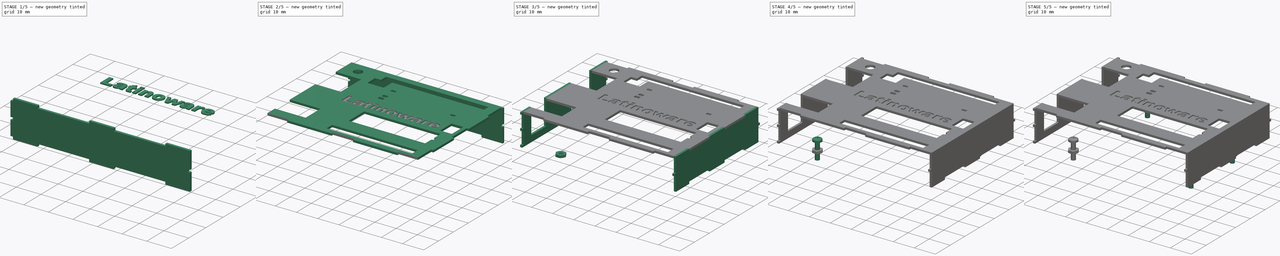
[diagram: build sequence overview — one tinted view per stage of 5, left to right]
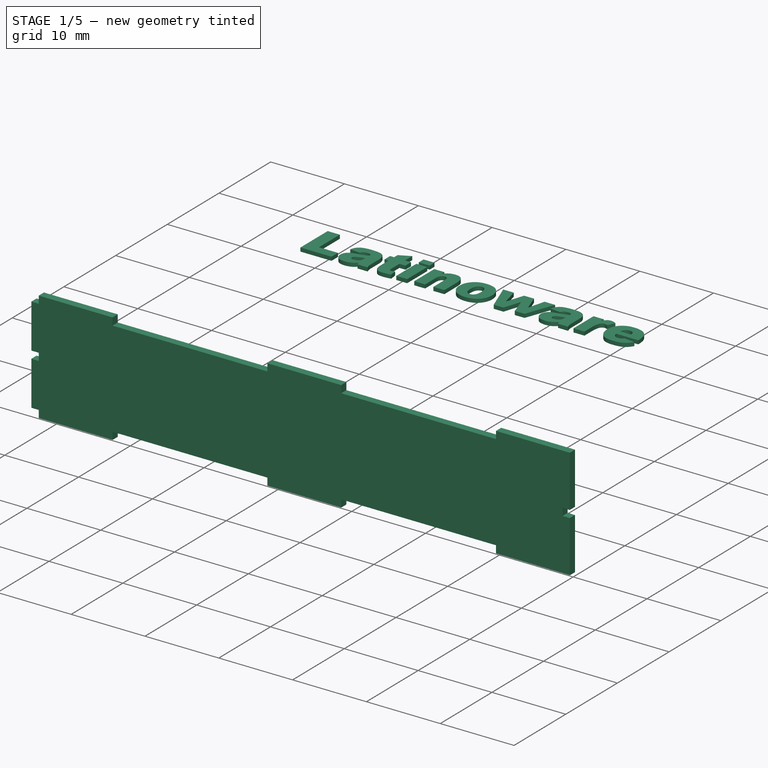
[diagram: stage 1 of 5 — iso view after this stage's code; geometry added in this stage tinted green]
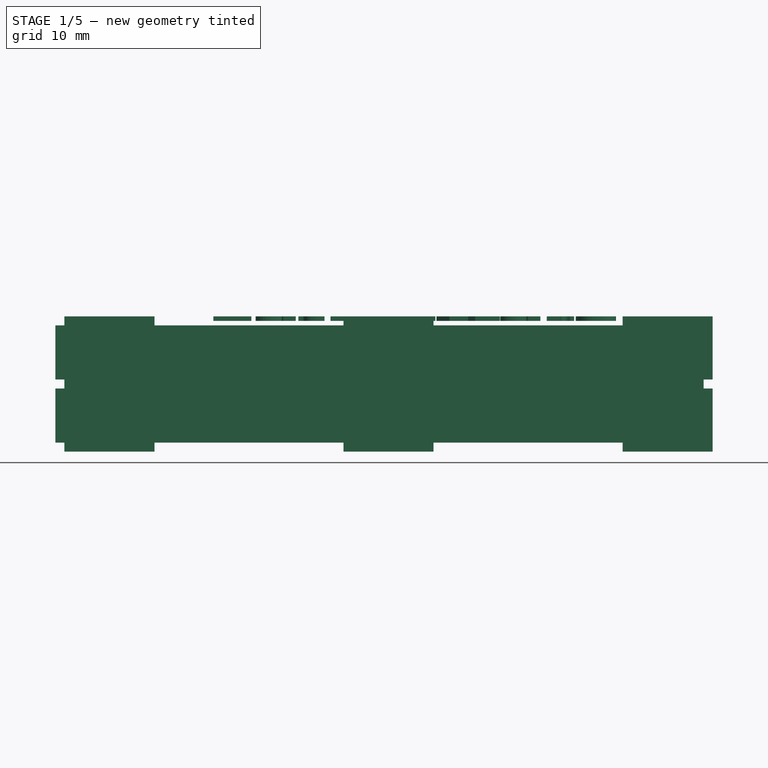
[diagram: stage 1 of 5 — front view after this stage's code; geometry added in this stage tinted green]
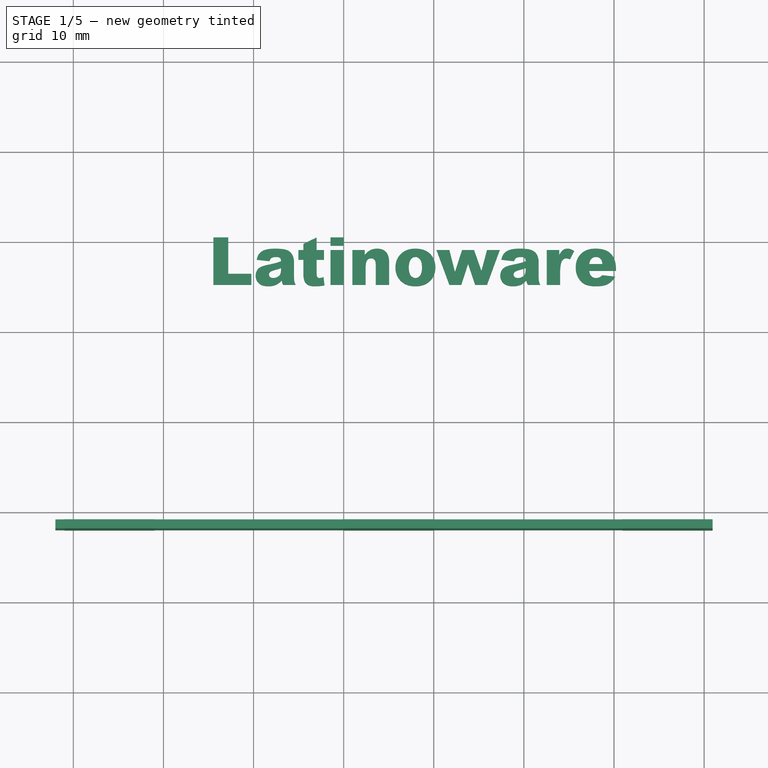
[diagram: stage 1 of 5 — top view after this stage's code; geometry added in this stage tinted green]
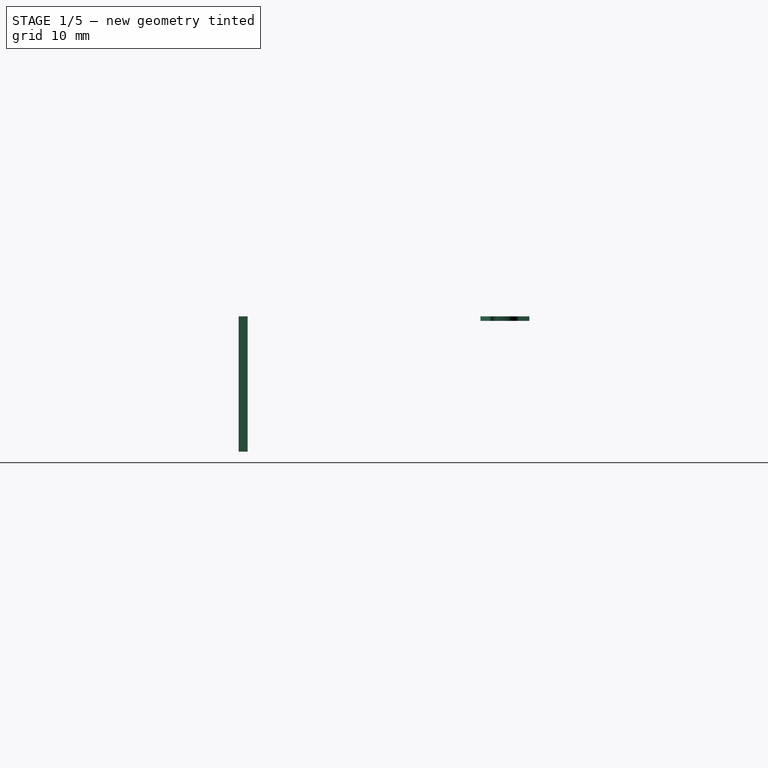
[diagram: stage 1 of 5 — right view after this stage's code; geometry added in this stage tinted green]
FCSTD DOCUMENT  (FreeCAD 0.19R)
Label: CAIXA-ARDUINO_06
License: Creative Commons Attribution-NonCommercial
LicenseURL: http://creativecommons.org/licenses/by-nc/4.0/
objects: Part::FeaturePython×8, Part::Extrusion×6, Sketcher::SketchObject×5, App::DocumentObjectGroup×3, Spreadsheet::Sheet×1, Part::Feature×1, Part::Mirroring×1, Part::Part2DObjectPython×1, Part::Cut×1
note: 23 computed .brp shape members not serialized (recipe doc carries the construction recipe); baked Part::Feature solids carry a one-line shape summary decoded from their .brp

FEATURE [Spreadsheet::Sheet] Spreadsheet
  cells = A1=Espessura; B1(width)=1; A2=Altura; B2(height)==13 + 2 * width; A3=Furo; B3(diameter)=3.5; A4=Conector A; B4(connectorA)=10; A5=Conector B; B5(connectorB)=10; A6=Conector C; B6(connectorC)=5; A7=Folga; B7(space)=1; A8=Cliente; B8(cliente)=Latinoware
FEATURE [Part::Feature] ARDUINO_3D_SCALED
  Placement = pos=(0,0,2) rot=(0,0,1;0rad)
  shape: bbox 75.35 x 53.65 x 13.2 mm, 104 faces, 0 solids (baked)
  expr: .Placement.Base.z = Spreadsheet.width + Spreadsheet.space
FEATURE [Sketcher::SketchObject] Sketch  label="Base"
  ExternalGeometry = -> [ARDUINO_3D_SCALED]
  expr: Constraints[145] = Spreadsheet.space
  expr: Constraints[124] = Spreadsheet.connectorB
  expr: Constraints[122] = Spreadsheet.connectorA
  expr: Constraints[121] = Spreadsheet.width
  expr: Constraints[153] = Spreadsheet.diameter
  sketch-geometry (57):
    g0: LineSegment StartX=-1 StartY=54.65 StartZ=0 EndX=9 EndY=54.65 EndZ=0
    g1: LineSegment StartX=9 StartY=54.65 StartZ=0 EndX=9 EndY=55.65 EndZ=0
    g2: LineSegment StartX=9 StartY=55.65 StartZ=0 EndX=29.975 EndY=55.65 EndZ=0
    g3: LineSegment StartX=29.975 StartY=55.65 StartZ=0 EndX=29.975 EndY=54.65 EndZ=0
    g4: LineSegment StartX=29.975 StartY=54.65 StartZ=0 EndX=39.975 EndY=54.65 EndZ=0
    g5: LineSegment StartX=39.975 StartY=54.65 StartZ=0 EndX=39.975 EndY=55.65 EndZ=0
    g6: LineSegment StartX=39.975 StartY=55.65 StartZ=0 EndX=60.95 EndY=55.65 EndZ=0
    g7: LineSegment StartX=60.95 StartY=55.65 StartZ=0 EndX=60.95 EndY=54.65 EndZ=0
    g8: LineSegment StartX=60.95 StartY=54.65 StartZ=0 EndX=69.95 EndY=54.65 EndZ=0
    g9: LineSegment StartX=69.95 StartY=54.65 StartZ=0 EndX=69.95 EndY=45.65 EndZ=0
    g10: LineSegment StartX=69.95 StartY=45.65 StartZ=0 EndX=70.95 EndY=45.65 EndZ=0
    g11: LineSegment StartX=70.95 StartY=45.65 StartZ=0 EndX=70.95 EndY=31.825 EndZ=0
    g12: LineSegment StartX=70.95 StartY=31.825 StartZ=0 EndX=69.95 EndY=31.825 EndZ=0
    g13: LineSegment StartX=69.95 StartY=31.825 StartZ=0 EndX=69.95 EndY=21.825 EndZ=0
    g14: LineSegment StartX=69.95 StartY=21.825 StartZ=0 EndX=70.95 EndY=21.825 EndZ=0
    g15: LineSegment StartX=70.95 StartY=21.825 StartZ=0 EndX=70.95 EndY=8 EndZ=0
    g16: LineSegment StartX=70.95 StartY=8 StartZ=0 EndX=69.95 EndY=8 EndZ=0
    g17: LineSegment StartX=69.95 StartY=8 StartZ=0 EndX=69.95 EndY=-1 EndZ=0
    g18: LineSegment StartX=69.95 StartY=-1 StartZ=0 EndX=60.95 EndY=-1 EndZ=0
    g19: LineSegment StartX=60.95 StartY=-1 StartZ=0 EndX=60.95 EndY=-2 EndZ=0
    g20: LineSegment StartX=60.95 StartY=-2 StartZ=0 EndX=39.975 EndY=-2 EndZ=0
    g21: LineSegment StartX=39.975 StartY=-2 StartZ=0 EndX=39.975 EndY=-1 EndZ=0
    g22: LineSegment StartX=39.975 StartY=-1 StartZ=0 EndX=29.975 EndY=-1 EndZ=0
    g23: LineSegment StartX=29.975 StartY=-1 StartZ=0 EndX=29.975 EndY=-2 EndZ=0
    g24: LineSegment StartX=29.975 StartY=-2 StartZ=0 EndX=9 EndY=-2 EndZ=0
    g25: LineSegment StartX=9 StartY=-2 StartZ=0 EndX=9 EndY=-1 EndZ=0
    g26: LineSegment StartX=9 StartY=-1 StartZ=0 EndX=-1 EndY=-1 EndZ=0
    g27: LineSegment StartX=-1 StartY=-1 StartZ=0 EndX=-1 EndY=54.65 EndZ=0
    g28: LineSegment [constr] StartX=-1 StartY=54.65 StartZ=0 EndX=-1 EndY=55.65 EndZ=0
    g29: LineSegment [constr] StartX=-1 StartY=55.65 StartZ=0 EndX=9 EndY=55.65 EndZ=0
    g30: LineSegment [constr] StartX=29.975 StartY=55.65 StartZ=0 EndX=39.975 EndY=55.65 EndZ=0
    g31: LineSegment [constr] StartX=60.95 StartY=55.65 StartZ=0 EndX=70.95 EndY=55.65 EndZ=0
    g32: LineSegment [constr] StartX=70.95 StartY=55.65 StartZ=0 EndX=70.95 EndY=45.65 EndZ=0
    g33: LineSegment [constr] StartX=69.95 StartY=54.65 StartZ=0 EndX=69.95 EndY=55.65 EndZ=0
    g34: LineSegment [constr] StartX=69.95 StartY=54.65 StartZ=0 EndX=70.95 EndY=54.65 EndZ=0
    g35: LineSegment [constr] StartX=70.95 StartY=31.825 StartZ=0 EndX=70.95 EndY=21.825 EndZ=0
    g36: LineSegment [constr] StartX=69.95 StartY=45.65 StartZ=0 EndX=69.95 EndY=31.825 EndZ=0
    g37: LineSegment [constr] StartX=69.95 StartY=21.825 StartZ=0 EndX=69.95 EndY=8 EndZ=0
    g38: LineSegment [constr] StartX=39.975 StartY=54.65 StartZ=0 EndX=60.95 EndY=54.65 EndZ=0
    g39: LineSegment [constr] StartX=9 StartY=54.65 StartZ=0 EndX=29.975 EndY=54.65 EndZ=0
    g40: LineSegment [constr] StartX=70.95 StartY=8 StartZ=0 EndX=70.95 EndY=-2 EndZ=0
    g41: LineSegment [constr] StartX=70.95 StartY=-2 StartZ=0 EndX=60.95 EndY=-2 EndZ=0
    g42: LineSegment [constr] StartX=69.95 StartY=-1 StartZ=0 EndX=70.95 EndY=-1 EndZ=0
    g43: LineSegment [constr] StartX=69.95 StartY=-1 StartZ=0 EndX=69.95 EndY=-2 EndZ=0
    g44: LineSegment [constr] StartX=39.975 StartY=-1 StartZ=0 EndX=60.95 EndY=-1 EndZ=0
    g45: LineSegment [constr] StartX=29.975 StartY=-2 StartZ=0 EndX=39.975 EndY=-2 EndZ=0
    g46: LineSegment [constr] StartX=9 StartY=-1 StartZ=0 EndX=29.975 EndY=-1 EndZ=0
    g47: LineSegment [constr] StartX=-1 StartY=-1 StartZ=0 EndX=-1 EndY=-2 EndZ=0
    g48: LineSegment [constr] StartX=-1 StartY=-2 StartZ=0 EndX=9 EndY=-2 EndZ=0
    g49: LineSegment [constr] StartX=32.925 StartY=53.65 StartZ=0 EndX=32.925 EndY=54.65 EndZ=0
    g50: LineSegment [constr] StartX=68.95 StartY=21.575 StartZ=0 EndX=69.95 EndY=21.575 EndZ=0
    g51: LineSegment [constr] StartX=33.2 StartY=4e-16 StartZ=0 EndX=33.2 EndY=-1 EndZ=0
    g52: LineSegment [constr] StartX=-1e-16 StartY=22.75 StartZ=0 EndX=-1 EndY=22.75 EndZ=0
    g53: Circle CenterX=14.0525 CenterY=2.55698 CenterZ=0 NormalX=0 NormalY=0 NormalZ=1 AngleXU=0 Radius=1.75
    g54: Circle CenterX=66.4139 CenterY=7.6684 CenterZ=0 NormalX=0 NormalY=0 NormalZ=1 AngleXU=0 Radius=1.75
    g55: Circle CenterX=66.41 CenterY=35.7498 CenterZ=0 NormalX=0 NormalY=0 NormalZ=1 AngleXU=0 Radius=1.75
    g56: Circle CenterX=15.3341 CenterY=51.0829 CenterZ=0 NormalX=0 NormalY=0 NormalZ=1 AngleXU=0 Radius=1.75
  constraints (154):
    c: Horizontal(g0)
    c: Coincident(g0,g1)
    c: Vertical(g1)
    c: Coincident(g1,g2)
    c: Horizontal(g2)
    c: Coincident(g2,g3)
    c: Vertical(g3)
    c: Coincident(g3,g4)
    c: Horizontal(g4)
    c: Coincident(g4,g5)
    c: Vertical(g5)
    c: Coincident(g5,g6)
    c: Horizontal(g6)
    c: Coincident(g6,g7)
    c: Vertical(g7)
    c: Coincident(g7,g8)
    c: Horizontal(g8)
    c: Coincident(g8,g9)
    c: Vertical(g9)
    c: Coincident(g9,g10)
    c: Horizontal(g10)
    c: Coincident(g10,g11)
    c: Vertical(g11)
    c: Coincident(g11,g12)
    c: Horizontal(g12)
    c: Coincident(g12,g13)
    c: Vertical(g13)
    c: Coincident(g13,g14)
    c: Horizontal(g14)
    c: Coincident(g14,g15)
    c: Vertical(g15)
    c: Coincident(g15,g16)
    c: Horizontal(g16)
    c: Coincident(g16,g17)
    c: Vertical(g17)
    c: Coincident(g17,g18)
    c: Horizontal(g18)
    c: Coincident(g18,g19)
    c: Vertical(g19)
    c: Coincident(g19,g20)
    c: Horizontal(g20)
    c: Coincident(g20,g21)
    c: Vertical(g21)
    c: Coincident(g21,g22)
    c: Horizontal(g22)
    c: Coincident(g22,g23)
    c: Vertical(g23)
    c: Coincident(g23,g24)
    c: Horizontal(g24)
    c: Coincident(g24,g25)
    c: Vertical(g25)
    c: Coincident(g25,g26)
    c: Horizontal(g26)
    c: Coincident(g26,g27)
    c: Vertical(g27)
    c: Coincident(g27,g0)
    c: Coincident(g0,g28)
    c: Vertical(g28)
    c: Coincident(g28,g29)
    c: Horizontal(g29)
    c: Coincident(g2,g30)
    c: Coincident(g30,g5)
    c: Horizontal(g30)
    c: Coincident(g6,g31)
    c: Horizontal(g31)
    c: Coincident(g32,g10)
    c: Vertical(g32)
    c: Coincident(g31,g32)
    c: Coincident(g33,g8)
    c: PointOnObject(g33,g31)
    c: Vertical(g33)
    c: Coincident(g34,g8)
    c: PointOnObject(g34,g32)
    c: Horizontal(g34)
    c: Coincident(g35,g11)
    c: Coincident(g35,g14)
    c: Vertical(g35)
    c: Coincident(g36,g9)
    c: Coincident(g36,g12)
    c: Vertical(g36)
    c: Coincident(g37,g13)
    c: Coincident(g37,g16)
    c: Vertical(g37)
    c: Coincident(g38,g4)
    c: Coincident(g38,g7)
    c: Horizontal(g38)
    c: Coincident(g39,g0)
    c: Coincident(g39,g3)
    c: Horizontal(g39)
    c: Coincident(g15,g40)
    c: Vertical(g40)
    c: Coincident(g40,g41)
    c: Coincident(g41,g19)
    c: Horizontal(g41)
    c: Coincident(g42,g17)
    c: PointOnObject(g42,g40)
    c: Horizontal(g42)
    c: Coincident(g43,g17)
    c: PointOnObject(g43,g41)
    c: Vertical(g43)
    c: Coincident(g44,g21)
    c: Coincident(g44,g18)
    c: Horizontal(g44)
    c: Coincident(g45,g23)
    c: Coincident(g45,g20)
    c: Horizontal(g45)
    c: Coincident(g46,g25)
    c: Coincident(g46,g22)
    c: Horizontal(g46)
    c: Coincident(g26,g47)
    c: Coincident(g47,g48)
    c: Coincident(g48,g24)
    c: Horizontal(g48)
    c: Equal(g29,g31)
    c: Equal(g31,g32)
    c: Equal(g32,g40)
    c: Equal(g40,g41)
    c: Equal(g41,g48)
    c: Coincident(g1,g29)
    c: Equal(g34,g33)
    c: Equal(g33,g43)
    c: DistanceY(g28,g28) = 1
    c: DistanceX(g29,g29) = 10
    c: Equal(g30,g45)
    c: DistanceX(g30,g30) = 10
    c: Equal(g6,g2)
    c: Equal(g2,g24)
    c: Equal(g24,g20)
    c: PointOnObject(g49,g4)
    c: Vertical(g49)
    c: PointOnObject(g50,g13)
    c: Horizontal(g50)
    c: PointOnObject(g51,g22)
    c: Vertical(g51)
    c: PointOnObject(g52,g27)
    c: Horizontal(g52)
    c: Symmetric(g-4,g-4,g52)
    c: Symmetric(g-3,g-3,g49)
    c: Symmetric(g-6,g-6,g50)
    c: Symmetric(g-5,g-5,g51)
    c: Equal(g51,g50)
    c: Equal(g50,g49)
    c: Equal(g49,g52)
    c: Equal(g35,g30)
    c: Equal(g11,g15)
    c: DistanceY(g49,g49) = 1
    c: Coincident(g53,g-15)
    c: Coincident(g54,g-14)
    c: Coincident(g55,g-13)
    c: Coincident(g56,g-12)
    c: Equal(g56,g55)
    c: Equal(g55,g54)
    c: Equal(g54,g53)
    c: Diameter(g56) = 3.5
FEATURE [Part::Extrusion] Extrude  label="Base001"
  Base = -> Sketch
  Dir = (0,0,1)
  DirMode = 2
  FaceMakerClass = Part::FaceMakerBullseye
  LengthFwd = 1
  LengthRev = 0
  Solid = true
  Symmetric = false
  expr: LengthFwd = Spreadsheet.width
FEATURE [Sketcher::SketchObject] Sketch001  label="Lateral Inf001"
  ExternalGeometry = -> [Extrude]
  MapMode = 5
  Placement = pos=(0,-1,0) rot=(1,0,0;1.5708rad)
  Support = -> [Extrude]
  expr: Constraints[187] = Spreadsheet.height
  expr: Constraints[156] = Spreadsheet.connectorB
  expr: Constraints[157] = Spreadsheet.connectorA
  sketch-geometry (74):
    g0: LineSegment [constr] StartX=-1 StartY=8 StartZ=0 EndX=9 EndY=8 EndZ=0
    g1: LineSegment [constr] StartX=9 StartY=8 StartZ=0 EndX=9 EndY=7 EndZ=0
    g2: LineSegment [constr] StartX=9 StartY=7 StartZ=0 EndX=-1 EndY=7 EndZ=0
    g3: LineSegment StartX=-1 StartY=7 StartZ=0 EndX=-1 EndY=8 EndZ=0
    g4: LineSegment [constr] StartX=29.975 StartY=8 StartZ=0 EndX=39.975 EndY=8 EndZ=0
    g5: LineSegment [constr] StartX=39.975 StartY=8 StartZ=0 EndX=39.975 EndY=7 EndZ=0
    g6: LineSegment [constr] StartX=39.975 StartY=7 StartZ=0 EndX=29.975 EndY=7 EndZ=0
    g7: LineSegment [constr] StartX=29.975 StartY=7 StartZ=0 EndX=29.975 EndY=8 EndZ=0
    g8: LineSegment StartX=69.95 StartY=8 StartZ=0 EndX=69.95 EndY=7 EndZ=0
    g9: LineSegment [constr] StartX=69.95 StartY=8 StartZ=0 EndX=69.95 EndY=14 EndZ=0
    g10: LineSegment [constr] StartX=69.95 StartY=14 StartZ=0 EndX=60.95 EndY=14 EndZ=0
    g11: LineSegment StartX=60.95 StartY=14 StartZ=0 EndX=60.95 EndY=15 EndZ=0
    g12: LineSegment [constr] StartX=69.95 StartY=15 StartZ=0 EndX=69.95 EndY=14 EndZ=0
    g13: LineSegment StartX=60.95 StartY=14 StartZ=0 EndX=39.975 EndY=14 EndZ=0
    g14: LineSegment [constr] StartX=39.975 StartY=14 StartZ=0 EndX=39.975 EndY=8 EndZ=0
    g15: LineSegment [constr] StartX=39.975 StartY=8 StartZ=0 EndX=60.95 EndY=8 EndZ=0
    g16: LineSegment [constr] StartX=60.95 StartY=8 StartZ=0 EndX=60.95 EndY=14 EndZ=0
    g17: LineSegment [constr] StartX=29.975 StartY=8 StartZ=0 EndX=9 EndY=8 EndZ=0
    g18: LineSegment [constr] StartX=9 StartY=8 StartZ=0 EndX=9 EndY=14 EndZ=0
    g19: LineSegment StartX=9 StartY=14 StartZ=0 EndX=29.975 EndY=14 EndZ=0
    g20: LineSegment [constr] StartX=29.975 StartY=14 StartZ=0 EndX=29.975 EndY=8 EndZ=0
    g21: LineSegment [constr] StartX=39.975 StartY=14 StartZ=0 EndX=29.975 EndY=14 EndZ=0
    g22: LineSegment StartX=29.975 StartY=14 StartZ=0 EndX=29.975 EndY=15 EndZ=0
    g23: LineSegment StartX=29.975 StartY=15 StartZ=0 EndX=39.975 EndY=15 EndZ=0
    g24: LineSegment StartX=39.975 StartY=15 StartZ=0 EndX=39.975 EndY=14 EndZ=0
    g25: LineSegment [constr] StartX=9 StartY=14 StartZ=0 EndX=-1 EndY=14 EndZ=0
    g26: LineSegment StartX=-1 StartY=14 StartZ=0 EndX=-1 EndY=15 EndZ=0
    g27: LineSegment StartX=9 StartY=15 StartZ=0 EndX=9 EndY=14 EndZ=0
    g28: LineSegment [constr] StartX=9 StartY=7 StartZ=0 EndX=29.975 EndY=7 EndZ=0
    g29: LineSegment StartX=29.975 StartY=0 StartZ=0 EndX=39.975 EndY=0 EndZ=0
    g30: LineSegment [constr] StartX=39.975 StartY=15 StartZ=0 EndX=60.95 EndY=15 EndZ=0
    g31: LineSegment [constr] StartX=9 StartY=15 StartZ=0 EndX=29.975 EndY=15 EndZ=0
    g32: LineSegment [constr] StartX=-1 StartY=8 StartZ=0 EndX=-1 EndY=14 EndZ=0
    g33: LineSegment [constr] StartX=29.975 StartY=0 StartZ=0 EndX=9 EndY=0 EndZ=0
    g34: LineSegment [constr] StartX=39.975 StartY=0 StartZ=0 EndX=60.95 EndY=0 EndZ=0
    g35: LineSegment StartX=69.95 StartY=7 StartZ=0 EndX=70.95 EndY=7 EndZ=0
    g36: LineSegment [constr] StartX=70.95 StartY=7 StartZ=0 EndX=70.95 EndY=8 EndZ=0
    g37: LineSegment StartX=70.95 StartY=8 StartZ=0 EndX=69.95 EndY=8 EndZ=0
    g38: LineSegment [constr] StartX=69.95 StartY=14 StartZ=0 EndX=70.95 EndY=14 EndZ=0
    g39: LineSegment StartX=-1 StartY=7 StartZ=0 EndX=-2 EndY=7 EndZ=0
    g40: LineSegment [constr] StartX=-2 StartY=7 StartZ=0 EndX=-2 EndY=8 EndZ=0
    g41: LineSegment StartX=-2 StartY=8 StartZ=0 EndX=-1 EndY=8 EndZ=0
    g42: LineSegment StartX=-1 StartY=14 StartZ=0 EndX=-2 EndY=14 EndZ=0
    g43: LineSegment StartX=70.95 StartY=7 StartZ=0 EndX=70.95 EndY=0 EndZ=0
    g44: LineSegment StartX=70.95 StartY=0 StartZ=0 EndX=60.95 EndY=0 EndZ=0
    g45: LineSegment [constr] StartX=69.95 StartY=7 StartZ=0 EndX=69.95 EndY=1 EndZ=0
    g46: LineSegment [constr] StartX=69.95 StartY=1 StartZ=0 EndX=69.95 EndY=0 EndZ=0
    g47: LineSegment [constr] StartX=69.95 StartY=1 StartZ=0 EndX=70.95 EndY=1 EndZ=0
    g48: LineSegment StartX=60.95 StartY=0 StartZ=0 EndX=60.95 EndY=1 EndZ=0
    g49: LineSegment [constr] StartX=60.95 StartY=1 StartZ=0 EndX=69.95 EndY=1 EndZ=0
    g50: LineSegment StartX=60.95 StartY=1 StartZ=0 EndX=39.975 EndY=1 EndZ=0
    g51: LineSegment [constr] StartX=39.975 StartY=1 StartZ=0 EndX=39.975 EndY=7 EndZ=0
    g52: LineSegment StartX=39.975 StartY=1 StartZ=0 EndX=39.975 EndY=0 EndZ=0
    g53: LineSegment [constr] StartX=29.975 StartY=7 StartZ=0 EndX=29.975 EndY=1 EndZ=0
    g54: LineSegment StartX=29.975 StartY=1 StartZ=0 EndX=29.975 EndY=0 EndZ=0
    g55: LineSegment [constr] StartX=29.975 StartY=1 StartZ=0 EndX=39.975 EndY=1 EndZ=0
    g56: LineSegment StartX=9 StartY=0 StartZ=0 EndX=9 EndY=1 EndZ=0
    g57: LineSegment StartX=9 StartY=1 StartZ=0 EndX=29.975 EndY=1 EndZ=0
    g58: LineSegment [constr] StartX=-1 StartY=7 StartZ=0 EndX=-1 EndY=1 EndZ=0
    g59: LineSegment StartX=-1 StartY=1 StartZ=0 EndX=-1 EndY=0 EndZ=0
    g60: LineSegment StartX=-2 StartY=1 StartZ=0 EndX=-1 EndY=1 EndZ=0
    g61: LineSegment [constr] StartX=-1 StartY=1 StartZ=0 EndX=9 EndY=1 EndZ=0
    g62: LineSegment [constr] StartX=9 StartY=1 StartZ=0 EndX=9 EndY=7 EndZ=0
    g63: LineSegment StartX=60.95 StartY=15 StartZ=0 EndX=70.95 EndY=15 EndZ=0
    g64: LineSegment StartX=70.95 StartY=15 StartZ=0 EndX=70.95 EndY=8 EndZ=0
    g65: LineSegment [constr] StartX=69.95 StartY=8 StartZ=0 EndX=60.95 EndY=8 EndZ=0
    g66: LineSegment [constr] StartX=39.975 StartY=7 StartZ=0 EndX=60.95 EndY=7 EndZ=0
    g67: LineSegment [constr] StartX=60.95 StartY=7 StartZ=0 EndX=69.95 EndY=7 EndZ=0
    g68: LineSegment [constr] StartX=60.95 StartY=8 StartZ=0 EndX=60.95 EndY=7 EndZ=0
    g69: LineSegment [constr] StartX=60.95 StartY=7 StartZ=0 EndX=60.95 EndY=1 EndZ=0
    g70: LineSegment StartX=-1 StartY=0 StartZ=0 EndX=9 EndY=0 EndZ=0
    g71: LineSegment StartX=-2 StartY=7 StartZ=0 EndX=-2 EndY=1 EndZ=0
    g72: LineSegment StartX=-2 StartY=14 StartZ=0 EndX=-2 EndY=8 EndZ=0
    g73: LineSegment StartX=-1 StartY=15 StartZ=0 EndX=9 EndY=15 EndZ=0
  constraints (191):
    c: Coincident(g0,g1)
    c: Coincident(g1,g2)
    c: Coincident(g2,g3)
    c: Coincident(g3,g0)
    c: Horizontal(g0)
    c: Horizontal(g2)
    c: Vertical(g1)
    c: Vertical(g3)
    c: Coincident(g4,g5)
    c: Coincident(g5,g6)
    c: Coincident(g6,g7)
    c: Coincident(g7,g4)
    c: Horizontal(g4)
    c: Horizontal(g6)
    c: Vertical(g5)
    c: Vertical(g7)
    c: Vertical(g8)
    c: Vertical(g9)
    c: Coincident(g10,g11)
    c: Coincident(g12,g10)
    c: Horizontal(g10)
    c: Vertical(g11)
    c: Vertical(g12)
    c: Coincident(g10,g9)
    c: Coincident(g13,g14)
    c: Coincident(g14,g15)
    c: Coincident(g15,g16)
    c: Coincident(g16,g13)
    c: Horizontal(g13)
    c: Horizontal(g15)
    c: Vertical(g14)
    c: Vertical(g16)
    c: Coincident(g13,g10)
    c: Coincident(g14,g4)
    c: Coincident(g17,g18)
    c: Coincident(g18,g19)
    c: Coincident(g19,g20)
    c: Coincident(g20,g17)
    c: Horizontal(g17)
    c: Horizontal(g19)
    c: Vertical(g18)
    c: Vertical(g20)
    c: Coincident(g17,g4)
    c: Coincident(g21,g22)
    c: Coincident(g22,g23)
    c: Coincident(g23,g24)
    c: Coincident(g24,g21)
    c: Horizontal(g21)
    c: Horizontal(g23)
    c: Vertical(g22)
    c: Vertical(g24)
    c: Coincident(g21,g13)
    c: Coincident(g25,g26)
    c: Coincident(g27,g25)
    c: Horizontal(g25)
    c: Vertical(g26)
    c: Vertical(g27)
    c: Coincident(g25,g18)
    c: Horizontal(g28)
    c: Coincident(g28,g1)
    c: Coincident(g19,g21)
    c: Coincident(g0,g17)
    c: Coincident(g6,g28)
    c: Horizontal(g29)
    c: Coincident(g30,g23)
    c: Coincident(g30,g11)
    c: Horizontal(g30)
    c: Coincident(g31,g22)
    c: Horizontal(g31)
    c: Coincident(g32,g0)
    c: Coincident(g32,g25)
    c: Vertical(g32)
    c: Horizontal(g33)
    c: Coincident(g34,g29)
    c: Horizontal(g34)
    c: Coincident(g8,g35)
    c: Horizontal(g35)
    c: Coincident(g35,g36)
    c: Vertical(g36)
    c: Coincident(g36,g37)
    c: Horizontal(g37)
    c: Coincident(g9,g38)
    c: Horizontal(g38)
    c: Coincident(g2,g39)
    c: Horizontal(g39)
    c: Coincident(g39,g40)
    c: Vertical(g40)
    c: Coincident(g40,g41)
    c: Coincident(g41,g0)
    c: Horizontal(g41)
    c: Coincident(g25,g42)
    c: Horizontal(g42)
    c: Coincident(g29,g33)
    c: Coincident(g43,g35)
    c: PointOnObject(g43,g-1)
    c: Vertical(g43)
    c: Coincident(g44,g34)
    c: Horizontal(g44)
    c: Coincident(g8,g45)
    c: Coincident(g45,g46)
    c: Vertical(g46)
    c: Coincident(g45,g47)
    c: PointOnObject(g47,g43)
    c: Horizontal(g47)
    c: Vertical(g45)
    c: Coincident(g44,g48)
    c: Coincident(g48,g49)
    c: Coincident(g49,g45)
    c: Horizontal(g49)
    c: Vertical(g48)
    c: Coincident(g48,g50)
    c: Horizontal(g50)
    c: Coincident(g50,g51)
    c: Coincident(g51,g5)
    c: Vertical(g51)
    c: Coincident(g52,g50)
    c: Coincident(g52,g29)
    c: Vertical(g52)
    c: Coincident(g6,g53)
    c: Vertical(g53)
    c: Coincident(g53,g54)
    c: Coincident(g54,g29)
    c: Vertical(g54)
    c: Coincident(g53,g55)
    c: Coincident(g55,g52)
    c: Horizontal(g55)
    c: Coincident(g56,g57)
    c: Coincident(g57,g53)
    c: Horizontal(g57)
    c: Vertical(g56)
    c: Vertical(g58)
    c: Coincident(g58,g59)
    c: Coincident(g60,g58)
    c: Horizontal(g60)
    c: Coincident(g60,g61)
    c: Coincident(g61,g56)
    c: Horizontal(g61)
    c: Coincident(g61,g62)
    c: Coincident(g62,g1)
    c: Vertical(g62)
    c: Coincident(g2,g58)
    c: Coincident(g63,g11)
    c: Horizontal(g63)
    c: Coincident(g64,g63)
    c: Coincident(g64,g37)
    c: Coincident(g27,g31)
    c: Equal(g59,g60)
    c: Equal(g31,g30)
    c: Coincident(g59,g-3)
    c: PointOnObject(g38,g64)
    c: Equal(g26,g12)
    c: Equal(g12,g38)
    c: Coincident(g8,g9)
    c: Coincident(g8,g37)
    c: Coincident(g65,g8)
    c: Horizontal(g65)
    c: DistanceX(g23,g23) = 10
    c: DistanceX(g63,g63) = 10
    c: Coincident(g58,g-3)
    c: Equal(g3,g26)
    c: Coincident(g46,g-4)
    c: Coincident(g43,g44)
    c: Coincident(g5,g66)
    c: Horizontal(g66)
    c: Coincident(g66,g67)
    c: Coincident(g67,g8)
    c: Horizontal(g67)
    c: Coincident(g15,g68)
    c: Coincident(g68,g66)
    c: Vertical(g68)
    c: Coincident(g68,g69)
    c: Coincident(g69,g48)
    c: Vertical(g69)
    c: Coincident(g15,g65)
    c: Vertical(g64)
    c: Coincident(g70,g59)
    c: Coincident(g70,g56)
    c: Coincident(g71,g39)
    c: Coincident(g71,g60)
    c: Vertical(g71)
    c: Coincident(g72,g42)
    c: Coincident(g72,g41)
    c: Vertical(g72)
    c: Coincident(g73,g26)
    c: Coincident(g73,g27)
    c: Horizontal(g73)
    c: Equal(g42,g26)
    c: DistanceY(g43,g63) = 15
    c: Equal(g71,g72)
    c: Coincident(g56,g33)
    c: Equal(g63,g73)
FEATURE [Part::Extrusion] Extrude001  label="Lateral Inf"
  Base = -> Sketch001
  Dir = (0,-1,2e-16)
  DirMode = 2
  FaceMakerClass = Part::FaceMakerBullseye
  LengthFwd = 1
  LengthRev = 0
  Solid = true
  Symmetric = false
  expr: LengthFwd = Spreadsheet.width
FEATURE [Part::Part2DObjectPython] ShapeString  # Draft 2D object (typed FeaturePython)
  FontFile = <path>
  Placement = pos=(15,25,15) rot=(0,0,1;0rad)
  Size = 7
  String = Latinoware
  Tracking = 0
  expr: .Placement.Base.z = Spreadsheet.height
  expr: String = Spreadsheet.cliente
FEATURE [Part::Extrusion] Extrude005  label="Nome do Cliente"
  Base = -> ShapeString
  Dir = (0,0,1)
  DirMode = 2
  FaceMakerClass = Part::FaceMakerBullseye
  LengthFwd = -0.5
  LengthRev = 0
  Solid = false
  Symmetric = false
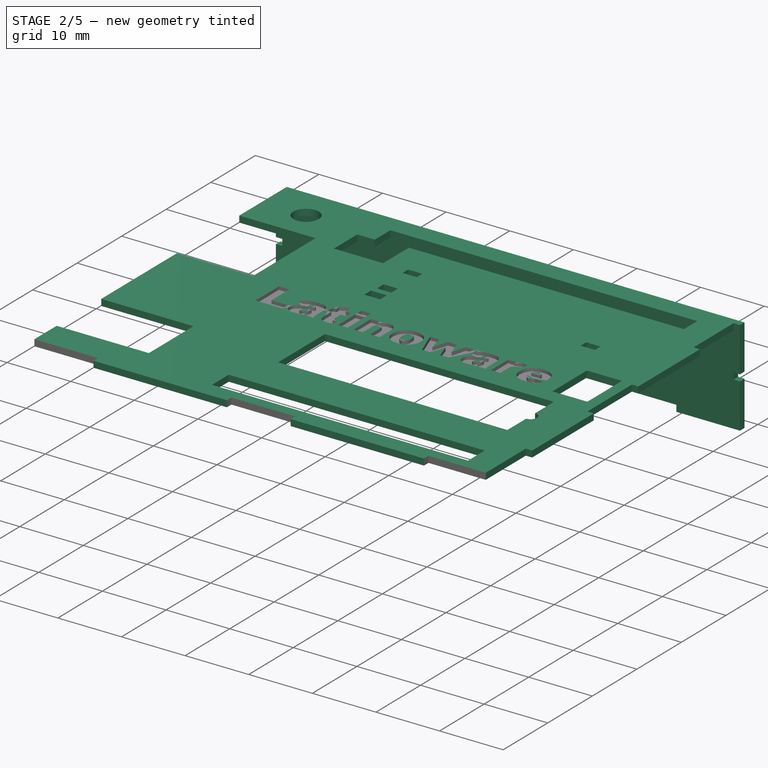
[diagram: stage 2 of 5 — iso view after this stage's code; geometry added in this stage tinted green]
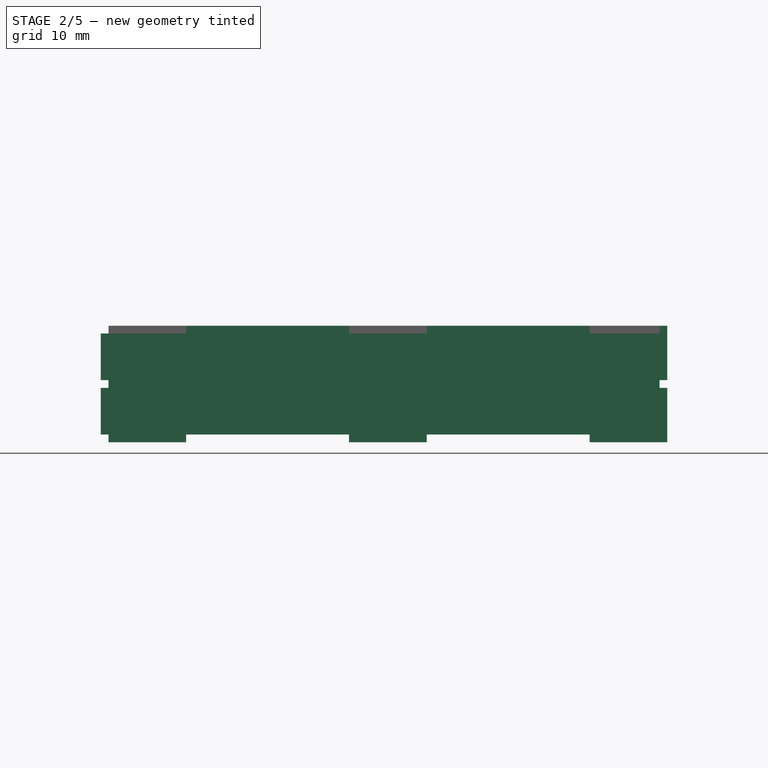
[diagram: stage 2 of 5 — front view after this stage's code; geometry added in this stage tinted green]
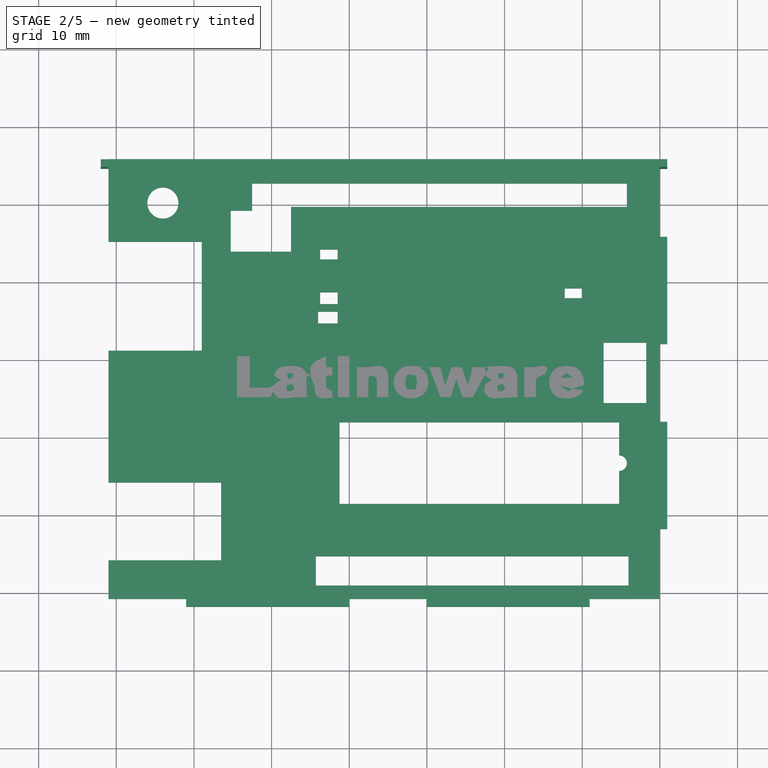
[diagram: stage 2 of 5 — top view after this stage's code; geometry added in this stage tinted green]
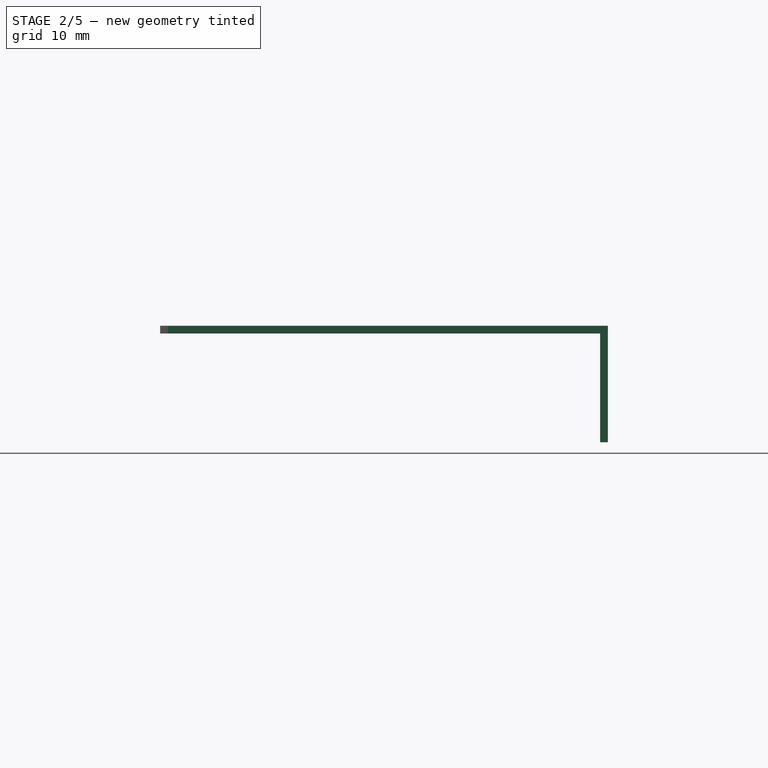
[diagram: stage 2 of 5 — right view after this stage's code; geometry added in this stage tinted green]
FEATURE [Part::Mirroring] mirror  label="Lateral Sup"
  Base = (-1,26.825,0)
  Normal = (0,1,0)
  Source = -> Extrude001
FEATURE [Sketcher::SketchObject] Sketch004
  ExternalGeometry = -> [ARDUINO_3D_SCALED]
  MapMode = 5
  Placement = pos=(0,3.3e-15,15) rot=(0,0,1;0rad)
  Support = -> [Extrude001]
  expr: Constraints[118] = Sketch.Constraints[121]
  expr: Constraints[119] = Sketch.Constraints[122]
  expr: Constraints[121] = Sketch.Constraints[124]
  expr: Constraints[141] = Sketch.Constraints[145]
  sketch-geometry (109):
    g0: LineSegment StartX=-1 StartY=54.65 StartZ=0 EndX=9 EndY=54.65 EndZ=0
    g1: LineSegment StartX=9 StartY=54.65 StartZ=0 EndX=9 EndY=55.65 EndZ=0
    g2: LineSegment StartX=9 StartY=55.65 StartZ=0 EndX=29.975 EndY=55.65 EndZ=0
    g3: LineSegment StartX=29.975 StartY=55.65 StartZ=0 EndX=29.975 EndY=54.65 EndZ=0
    g4: LineSegment StartX=29.975 StartY=54.65 StartZ=0 EndX=39.975 EndY=54.65 EndZ=0
    g5: LineSegment StartX=39.975 StartY=54.65 StartZ=0 EndX=39.975 EndY=55.65 EndZ=0
    g6: LineSegment StartX=39.975 StartY=55.65 StartZ=0 EndX=60.95 EndY=55.65 EndZ=0
    g7: LineSegment StartX=60.95 StartY=55.65 StartZ=0 EndX=60.95 EndY=54.65 EndZ=0
    g8: LineSegment StartX=60.95 StartY=54.65 StartZ=0 EndX=69.95 EndY=54.65 EndZ=0
    g9: LineSegment StartX=69.95 StartY=54.65 StartZ=0 EndX=69.95 EndY=45.65 EndZ=0
    g10: LineSegment StartX=69.95 StartY=45.65 StartZ=0 EndX=70.95 EndY=45.65 EndZ=0
    g11: LineSegment StartX=70.95 StartY=45.65 StartZ=0 EndX=70.95 EndY=31.825 EndZ=0
    g12: LineSegment StartX=70.95 StartY=31.825 StartZ=0 EndX=69.95 EndY=31.825 EndZ=0
    g13: LineSegment StartX=69.95 StartY=31.825 StartZ=0 EndX=69.95 EndY=21.825 EndZ=0
    g14: LineSegment StartX=69.95 StartY=21.825 StartZ=0 EndX=70.95 EndY=21.825 EndZ=0
    g15: LineSegment StartX=70.95 StartY=21.825 StartZ=0 EndX=70.95 EndY=8 EndZ=0
    g16: LineSegment StartX=70.95 StartY=8 StartZ=0 EndX=69.95 EndY=8 EndZ=0
    g17: LineSegment StartX=69.95 StartY=8 StartZ=0 EndX=69.95 EndY=-1 EndZ=0
    g18: LineSegment StartX=69.95 StartY=-1 StartZ=0 EndX=60.95 EndY=-1 EndZ=0
    g19: LineSegment StartX=60.95 StartY=-1 StartZ=0 EndX=60.95 EndY=-2 EndZ=0
    g20: LineSegment StartX=60.95 StartY=-2 StartZ=0 EndX=39.975 EndY=-2 EndZ=0
    g21: LineSegment StartX=39.975 StartY=-2 StartZ=0 EndX=39.975 EndY=-1 EndZ=0
    g22: LineSegment StartX=39.975 StartY=-1 StartZ=0 EndX=29.975 EndY=-1 EndZ=0
    g23: LineSegment StartX=29.975 StartY=-1 StartZ=0 EndX=29.975 EndY=-2 EndZ=0
    g24: LineSegment StartX=29.975 StartY=-2 StartZ=0 EndX=9 EndY=-2 EndZ=0
    g25: LineSegment StartX=9 StartY=-2 StartZ=0 EndX=9 EndY=-1 EndZ=0
    g26: LineSegment StartX=9 StartY=-1 StartZ=0 EndX=-1 EndY=-1 EndZ=0
    g27: LineSegment [constr] StartX=-1 StartY=54.65 StartZ=0 EndX=-1 EndY=55.65 EndZ=0
    g28: LineSegment [constr] StartX=-1 StartY=55.65 StartZ=0 EndX=9 EndY=55.65 EndZ=0
    g29: LineSegment [constr] StartX=29.975 StartY=55.65 StartZ=0 EndX=39.975 EndY=55.65 EndZ=0
    g30: LineSegment [constr] StartX=60.95 StartY=55.65 StartZ=0 EndX=70.95 EndY=55.65 EndZ=0
    g31: LineSegment [constr] StartX=70.95 StartY=55.65 StartZ=0 EndX=70.95 EndY=45.65 EndZ=0
    g32: LineSegment [constr] StartX=69.95 StartY=54.65 StartZ=0 EndX=69.95 EndY=55.65 EndZ=0
    g33: LineSegment [constr] StartX=69.95 StartY=54.65 StartZ=0 EndX=70.95 EndY=54.65 EndZ=0
    g34: LineSegment [constr] StartX=70.95 StartY=31.825 StartZ=0 EndX=70.95 EndY=21.825 EndZ=0
    g35: LineSegment [constr] StartX=69.95 StartY=45.65 StartZ=0 EndX=69.95 EndY=31.825 EndZ=0
    g36: LineSegment [constr] StartX=69.95 StartY=21.825 StartZ=0 EndX=69.95 EndY=8 EndZ=0
    g37: LineSegment [constr] StartX=39.975 StartY=54.65 StartZ=0 EndX=60.95 EndY=54.65 EndZ=0
    g38: LineSegment [constr] StartX=9 StartY=54.65 StartZ=0 EndX=29.975 EndY=54.65 EndZ=0
    g39: LineSegment [constr] StartX=70.95 StartY=8 StartZ=0 EndX=70.95 EndY=-2 EndZ=0
    g40: LineSegment [constr] StartX=70.95 StartY=-2 StartZ=0 EndX=60.95 EndY=-2 EndZ=0
    g41: LineSegment [constr] StartX=69.95 StartY=-1 StartZ=0 EndX=70.95 EndY=-1 EndZ=0
    g42: LineSegment [constr] StartX=69.95 StartY=-1 StartZ=0 EndX=69.95 EndY=-2 EndZ=0
    g43: LineSegment [constr] StartX=39.975 StartY=-1 StartZ=0 EndX=60.95 EndY=-1 EndZ=0
    g44: LineSegment [constr] StartX=29.975 StartY=-2 StartZ=0 EndX=39.975 EndY=-2 EndZ=0
    g45: LineSegment [constr] StartX=9 StartY=-1 StartZ=0 EndX=29.975 EndY=-1 EndZ=0
    g46: LineSegment [constr] StartX=-1 StartY=-1 StartZ=0 EndX=-1 EndY=-2 EndZ=0
    g47: LineSegment [constr] StartX=-1 StartY=-2 StartZ=0 EndX=9 EndY=-2 EndZ=0
    g48: LineSegment [constr] StartX=32.925 StartY=53.65 StartZ=0 EndX=32.925 EndY=54.65 EndZ=0
    g49: LineSegment [constr] StartX=68.95 StartY=21.575 StartZ=0 EndX=69.95 EndY=21.575 EndZ=0
    g50: LineSegment [constr] StartX=33.2 StartY=-3e-16 StartZ=0 EndX=33.2 EndY=-1 EndZ=0
    g51: LineSegment [constr] StartX=-2e-16 StartY=22.75 StartZ=0 EndX=-1 EndY=22.75 EndZ=0
    g52: LineSegment StartX=-1 StartY=54.65 StartZ=0 EndX=-1 EndY=45 EndZ=0
    g53: LineSegment StartX=-1 StartY=45 StartZ=0 EndX=11 EndY=45 EndZ=0
    g54: LineSegment StartX=11 StartY=45 StartZ=0 EndX=11 EndY=31 EndZ=0
    g55: LineSegment StartX=11 StartY=31 StartZ=0 EndX=-1 EndY=31 EndZ=0
    g56: LineSegment StartX=-1 StartY=31 StartZ=0 EndX=-1 EndY=14 EndZ=0
    g57: LineSegment StartX=-1 StartY=14 StartZ=0 EndX=13.5 EndY=14 EndZ=0
    g58: LineSegment StartX=13.5 StartY=14 StartZ=0 EndX=13.5 EndY=4 EndZ=0
    g59: LineSegment StartX=13.5 StartY=4 StartZ=0 EndX=-1 EndY=4 EndZ=0
    g60: LineSegment StartX=-1 StartY=4 StartZ=0 EndX=-1 EndY=-1 EndZ=0
    g61: LineSegment [constr] StartX=-1 StartY=14 StartZ=0 EndX=-1 EndY=4 EndZ=0
    g62: LineSegment [constr] StartX=-1 StartY=45 StartZ=0 EndX=-1 EndY=31 EndZ=0
    g63: LineSegment StartX=25.7 StartY=4.5 StartZ=0 EndX=65.95 EndY=4.5 EndZ=0
    g64: LineSegment StartX=65.95 StartY=4.5 StartZ=0 EndX=65.95 EndY=0.75 EndZ=0
    g65: LineSegment StartX=65.95 StartY=0.75 StartZ=0 EndX=25.7 EndY=0.75 EndZ=0
    g66: LineSegment StartX=25.7 StartY=0.75 StartZ=0 EndX=25.7 EndY=4.5 EndZ=0
    g67: Circle CenterX=6 CenterY=50 CenterZ=0 NormalX=0 NormalY=0 NormalZ=1 AngleXU=0 Radius=2
    g68: LineSegment StartX=17.5 StartY=52.5 StartZ=0 EndX=65.75 EndY=52.5 EndZ=0
    g69: LineSegment StartX=65.75 StartY=52.5 StartZ=0 EndX=65.75 EndY=49.5 EndZ=0
    g70: LineSegment StartX=65.75 StartY=49.5 StartZ=0 EndX=22.5 EndY=49.5 EndZ=0
    g71: LineSegment StartX=22.5 StartY=49.5 StartZ=0 EndX=22.5 EndY=43.75 EndZ=0
    g72: LineSegment StartX=22.5 StartY=43.75 StartZ=0 EndX=14.75 EndY=43.75 EndZ=0
    g73: LineSegment StartX=14.75 StartY=43.75 StartZ=0 EndX=14.75 EndY=49 EndZ=0
    g74: LineSegment [constr] StartX=22.5 StartY=52.5 StartZ=0 EndX=22.5 EndY=49.5 EndZ=0
    g75: LineSegment StartX=17.5 StartY=52.5 StartZ=0 EndX=17.5 EndY=49 EndZ=0
    g76: LineSegment StartX=17.5 StartY=49 StartZ=0 EndX=14.75 EndY=49 EndZ=0
    g77: LineSegment StartX=26.25 StartY=44 StartZ=0 EndX=28.5 EndY=44 EndZ=0
    g78: LineSegment StartX=28.5 StartY=44 StartZ=0 EndX=28.5 EndY=42.75 EndZ=0
    g79: LineSegment StartX=28.5 StartY=42.75 StartZ=0 EndX=26.25 EndY=42.75 EndZ=0
    g80: LineSegment StartX=26.25 StartY=42.75 StartZ=0 EndX=26.25 EndY=44 EndZ=0
    g81: LineSegment StartX=26.25 StartY=38.5 StartZ=0 EndX=28.5 EndY=38.5 EndZ=0
    g82: LineSegment StartX=28.5 StartY=38.5 StartZ=0 EndX=28.5 EndY=37 EndZ=0
    g83: LineSegment StartX=28.5 StartY=37 StartZ=0 EndX=26.25 EndY=37 EndZ=0
    g84: LineSegment StartX=26.25 StartY=37 StartZ=0 EndX=26.25 EndY=38.5 EndZ=0
    g85: LineSegment [constr] StartX=26.25 StartY=42.75 StartZ=0 EndX=26.25 EndY=38.5 EndZ=0
    g86: LineSegment [constr] StartX=28.5 StartY=42.75 StartZ=0 EndX=28.5 EndY=38.5 EndZ=0
    g87: LineSegment [constr] StartX=26.25 StartY=44 StartZ=0 EndX=22.5 EndY=44 EndZ=0
    g88: LineSegment [constr] StartX=68.95 StartY=38.05 StartZ=0 EndX=60 EndY=38.05 EndZ=0
    g89: LineSegment [constr] StartX=62.75 StartY=32 StartZ=0 EndX=62.75 EndY=38.05 EndZ=0
    g90: LineSegment StartX=28.75 StartY=21.75 StartZ=0 EndX=64.75 EndY=21.75 EndZ=0
    g91: LineSegment StartX=64.75 StartY=21.75 StartZ=0 EndX=64.75 EndY=17.5 EndZ=0
    g92: LineSegment StartX=64.75 StartY=11.25 StartZ=0 EndX=28.75 EndY=11.25 EndZ=0
    g93: LineSegment StartX=28.75 StartY=11.25 StartZ=0 EndX=28.75 EndY=21.75 EndZ=0
    g94: LineSegment StartX=57.75 StartY=39 StartZ=0 EndX=60 EndY=39 EndZ=0
    g95: LineSegment StartX=60 StartY=39 StartZ=0 EndX=60 EndY=37.75 EndZ=0
    g96: LineSegment StartX=60 StartY=37.75 StartZ=0 EndX=57.75 EndY=37.75 EndZ=0
    g97: LineSegment StartX=57.75 StartY=37.75 StartZ=0 EndX=57.75 EndY=39 EndZ=0
    g98: LineSegment StartX=62.75 StartY=32 StartZ=0 EndX=68.25 EndY=32 EndZ=0
    g99: LineSegment StartX=68.25 StartY=32 StartZ=0 EndX=68.25 EndY=24.25 EndZ=0
    g100: LineSegment StartX=68.25 StartY=24.25 StartZ=0 EndX=62.75 EndY=24.25 EndZ=0
    g101: LineSegment StartX=62.75 StartY=24.25 StartZ=0 EndX=62.75 EndY=32 EndZ=0
    g102: LineSegment StartX=26 StartY=36 StartZ=0 EndX=28.5 EndY=36 EndZ=0
    g103: LineSegment StartX=28.5 StartY=36 StartZ=0 EndX=28.5 EndY=34.5 EndZ=0
    g104: LineSegment StartX=28.5 StartY=34.5 StartZ=0 EndX=26 EndY=34.5 EndZ=0
    g105: LineSegment StartX=26 StartY=34.5 StartZ=0 EndX=26 EndY=36 EndZ=0
    g106: ArcOfCircle CenterX=64.75 CenterY=16.5 CenterZ=0 NormalX=0 NormalY=0 NormalZ=1 AngleXU=0 Radius=1 StartAngle=4.71239 EndAngle=7.85398
    g107: LineSegment StartX=64.75 StartY=15.5 StartZ=0 EndX=64.75 EndY=11.25 EndZ=0
    g108: LineSegment [constr] StartX=64.75 StartY=17.5 StartZ=0 EndX=64.75 EndY=15.5 EndZ=0
  constraints (277):
    c: Horizontal(g0)
    c: Coincident(g0,g1)
    c: Vertical(g1)
    c: Coincident(g1,g2)
    c: Horizontal(g2)
    c: Coincident(g2,g3)
    c: Vertical(g3)
    c: Coincident(g3,g4)
    c: Horizontal(g4)
    c: Coincident(g4,g5)
    c: Vertical(g5)
    c: Coincident(g5,g6)
    c: Horizontal(g6)
    c: Coincident(g6,g7)
    c: Vertical(g7)
    c: Coincident(g7,g8)
    c: Horizontal(g8)
    c: Coincident(g8,g9)
    c: Vertical(g9)
    c: Coincident(g9,g10)
    c: Horizontal(g10)
    c: Coincident(g10,g11)
    c: Vertical(g11)
    c: Coincident(g11,g12)
    c: Horizontal(g12)
    c: Coincident(g12,g13)
    c: Vertical(g13)
    c: Coincident(g13,g14)
    c: Horizontal(g14)
    c: Coincident(g14,g15)
    c: Vertical(g15)
    c: Coincident(g15,g16)
    c: Horizontal(g16)
    c: Coincident(g16,g17)
    c: Vertical(g17)
    c: Coincident(g17,g18)
    c: Horizontal(g18)
    c: Coincident(g18,g19)
    c: Vertical(g19)
    c: Coincident(g19,g20)
    c: Horizontal(g20)
    c: Coincident(g20,g21)
    c: Vertical(g21)
    c: Coincident(g21,g22)
    c: Horizontal(g22)
    c: Coincident(g22,g23)
    c: Vertical(g23)
    c: Coincident(g23,g24)
    c: Horizontal(g24)
    c: Coincident(g24,g25)
    c: Vertical(g25)
    c: Coincident(g25,g26)
    c: Horizontal(g26)
    c: Coincident(g0,g27)
    c: Vertical(g27)
    c: Coincident(g27,g28)
    c: Horizontal(g28)
    c: Coincident(g2,g29)
    c: Coincident(g29,g5)
    c: Horizontal(g29)
    c: Coincident(g6,g30)
    c: Horizontal(g30)
    c: Coincident(g31,g10)
    c: Vertical(g31)
    c: Coincident(g30,g31)
    c: Coincident(g32,g8)
    c: PointOnObject(g32,g30)
    c: Vertical(g32)
    c: Coincident(g33,g8)
    c: PointOnObject(g33,g31)
    c: Horizontal(g33)
    c: Coincident(g34,g11)
    c: Coincident(g34,g14)
    c: Vertical(g34)
    c: Coincident(g35,g9)
    c: Coincident(g35,g12)
    c: Vertical(g35)
    c: Coincident(g36,g13)
    c: Coincident(g36,g16)
    c: Vertical(g36)
    c: Coincident(g37,g4)
    c: Coincident(g37,g7)
    c: Horizontal(g37)
    c: Coincident(g38,g0)
    c: Coincident(g38,g3)
    c: Horizontal(g38)
    c: Coincident(g15,g39)
    c: Vertical(g39)
    c: Coincident(g39,g40)
    c: Coincident(g40,g19)
    c: Horizontal(g40)
    c: Coincident(g41,g17)
    c: PointOnObject(g41,g39)
    c: Horizontal(g41)
    c: Coincident(g42,g17)
    c: PointOnObject(g42,g40)
    c: Vertical(g42)
    c: Coincident(g43,g21)
    c: Coincident(g43,g18)
    c: Horizontal(g43)
    c: Coincident(g44,g23)
    c: Coincident(g44,g20)
    c: Horizontal(g44)
    c: Coincident(g45,g25)
    c: Coincident(g45,g22)
    c: Horizontal(g45)
    c: Coincident(g26,g46)
    c: Coincident(g46,g47)
    c: Coincident(g47,g24)
    c: Horizontal(g47)
    c: Equal(g28,g30)
    c: Equal(g30,g31)
    c: Equal(g31,g39)
    c: Equal(g39,g40)
    c: Equal(g40,g47)
    c: Coincident(g1,g28)
    c: Equal(g33,g32)
    c: Equal(g32,g42)
    c: DistanceY(g27,g27) = 1
    c: DistanceX(g28,g28) = 10
    c: Equal(g29,g44)
    c: DistanceX(g29,g29) = 10
    c: Equal(g6,g2)
    c: Equal(g2,g24)
    c: Equal(g24,g20)
    c: PointOnObject(g48,g4)
    c: Vertical(g48)
    c: PointOnObject(g49,g13)
    c: Horizontal(g49)
    c: PointOnObject(g50,g22)
    c: Vertical(g50)
    c: Horizontal(g51)
    c: Symmetric(g-4,g-4,g51)
    c: Symmetric(g-3,g-3,g48)
    c: Symmetric(g-6,g-6,g49)
    c: Symmetric(g-5,g-5,g50)
    c: Equal(g50,g49)
    c: Equal(g49,g48)
    c: Equal(g48,g51)
    c: Equal(g34,g29)
    c: Equal(g11,g15)
    c: DistanceY(g48,g48) = 1
    c: Coincident(g0,g52)
    c: Vertical(g52)
    c: Coincident(g52,g53)
    c: Horizontal(g53)
    c: Coincident(g53,g54)
    c: Vertical(g54)
    c: Coincident(g54,g55)
    c: Horizontal(g55)
    c: Coincident(g55,g56)
    c: Vertical(g56)
    c: Coincident(g56,g57)
    c: Horizontal(g57)
    c: Coincident(g57,g58)
    c: Vertical(g58)
    c: Coincident(g58,g59)
    c: Horizontal(g59)
    c: Coincident(g59,g60)
    c: Coincident(g60,g26)
    c: Vertical(g60)
    c: Coincident(g61,g56)
    c: Coincident(g61,g59)
    c: Vertical(g61)
    c: Coincident(g62,g52)
    c: Coincident(g62,g55)
    c: Vertical(g62)
    c: PointOnObject(g51,g56)
    c: DistanceX(g-9,g54) = 11
    c: DistanceX(g-4,g57) = 13.5
    c: DistanceY(g60,g60) = 5
    c: DistanceY(g61,g61) = 10
    c: DistanceY(g56,g56) = 17
    c: DistanceY(g62,g62) = 14
    c: Coincident(g63,g64)
    c: Coincident(g64,g65)
    c: Coincident(g65,g66)
    c: Coincident(g66,g63)
    c: Horizontal(g63)
    c: Horizontal(g65)
    c: Vertical(g64)
    c: Vertical(g66)
    c: Coincident(g67,g-12)
    c: Diameter(g67) = 4
    c: Horizontal(g68)
    c: Coincident(g68,g69)
    c: Vertical(g69)
    c: Coincident(g69,g70)
    c: Horizontal(g70)
    c: Coincident(g70,g71)
    c: Vertical(g71)
    c: Coincident(g71,g72)
    c: Horizontal(g72)
    c: Coincident(g72,g73)
    c: Vertical(g73)
    c: PointOnObject(g74,g68)
    c: Coincident(g74,g70)
    c: Vertical(g74)
    c: Vertical(g75)
    c: Horizontal(g76)
    c: Coincident(g77,g78)
    c: Coincident(g78,g79)
    c: Coincident(g79,g80)
    c: Coincident(g80,g77)
    c: Horizontal(g77)
    c: Horizontal(g79)
    c: Vertical(g78)
    c: Vertical(g80)
    c: Coincident(g81,g82)
    c: Coincident(g82,g83)
    c: Coincident(g83,g84)
    c: Coincident(g84,g81)
    c: Horizontal(g81)
    c: Horizontal(g83)
    c: Vertical(g82)
    c: Vertical(g84)
    c: Coincident(g85,g79)
    c: Coincident(g85,g81)
    c: Coincident(g86,g78)
    c: Coincident(g86,g81)
    c: Vertical(g86)
    c: Vertical(g85)
    c: Coincident(g87,g77)
    c: PointOnObject(g87,g71)
    c: Horizontal(g87)
    c: DistanceX(g64,g17) = 4
    c: DistanceY(g17,g64) = 1.75
    c: DistanceY(g66,g66) = 3.75
    c: DistanceX(g63,g63) = 40.25
    c: Coincident(g73,g76)
    c: Coincident(g68,g75)
    c: Coincident(g88,g-6)
    c: Horizontal(g88)
    c: PointOnObject(g89,g88)
    c: Vertical(g89)
    c: Coincident(g90,g91)
    c: Coincident(g107,g92)
    c: Coincident(g92,g93)
    c: Coincident(g93,g90)
    c: Horizontal(g90)
    c: Horizontal(g92)
    c: Vertical(g91)
    c: Vertical(g93)
    c: Coincident(g94,g95)
    c: Coincident(g95,g96)
    c: Coincident(g96,g97)
    c: Coincident(g97,g94)
    c: Horizontal(g94)
    c: Horizontal(g96)
    c: Vertical(g95)
    c: Vertical(g97)
    c: PointOnObject(g88,g95)
    c: Coincident(g98,g99)
    c: Coincident(g99,g100)
    c: Coincident(g100,g101)
    c: Coincident(g101,g98)
    c: Horizontal(g98)
    c: Horizontal(g100)
    c: Vertical(g99)
    c: Vertical(g101)
    c: Coincident(g98,g89)
    c: Coincident(g102,g103)
    c: Coincident(g103,g104)
    c: Coincident(g105,g102)
    c: Horizontal(g102)
    c: Horizontal(g104)
    c: Vertical(g103)
    c: Vertical(g105)
    c: Coincident(g75,g76)
    c: Coincident(g105,g104)
    c: Tangent(g91,g107)
    c: Coincident(g106,g107)
    c: Coincident(g106,g91)
    c: Coincident(g108,g91)
    c: Coincident(g108,g106)
    c: Equal(g107,g91)
    c: Symmetric(g108,g108,g106)
FEATURE [Part::Extrusion] Extrude004  label="Tampa"
  Base = -> Sketch004
  Dir = (0,0,-1)
  DirMode = 0
  FaceMakerClass = Part::FaceMakerBullseye
  LengthFwd = 1
  LengthRev = 0
  Solid = true
  Symmetric = false
  expr: LengthFwd = Spreadsheet.width
FEATURE [Part::Cut] Cut  label="Tampa001"
  Base = -> Extrude004
  Refine = true
  Tool = -> Extrude005
FEATURE [App::DocumentObjectGroup] Group002  label="Corte"
  Group = -> [Extrude003,Extrude002,Extrude,mirror,Cut]
note: 1 file-system path scrubbed to <path> (originals preserved in the JSON sidecar)
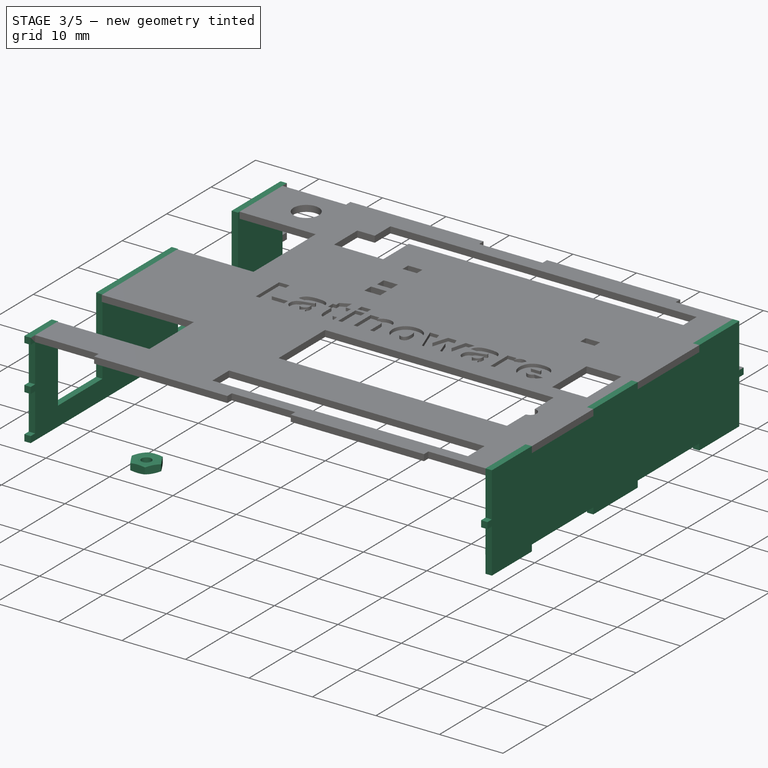
[diagram: stage 3 of 5 — iso view after this stage's code; geometry added in this stage tinted green]
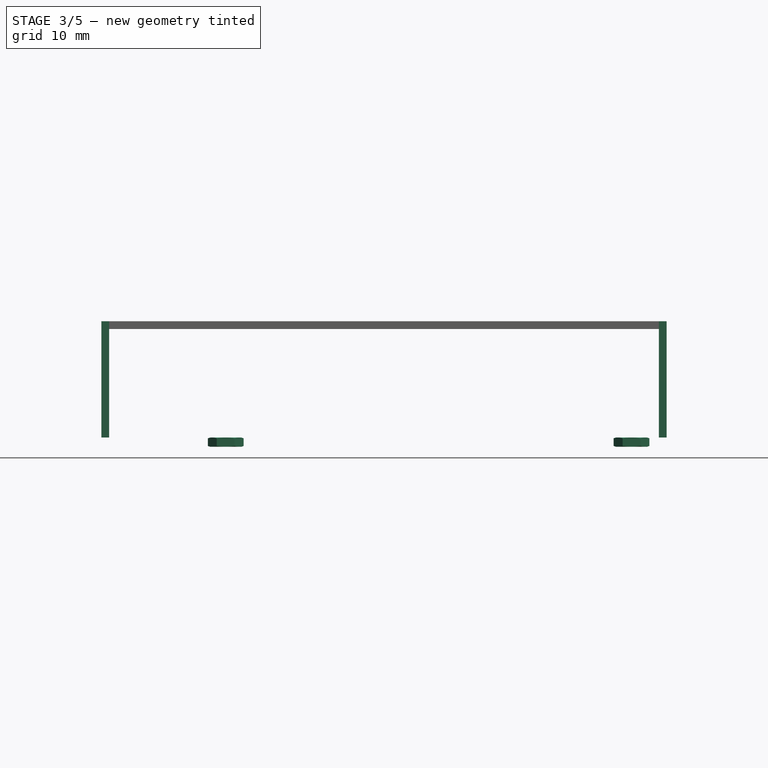
[diagram: stage 3 of 5 — front view after this stage's code; geometry added in this stage tinted green]
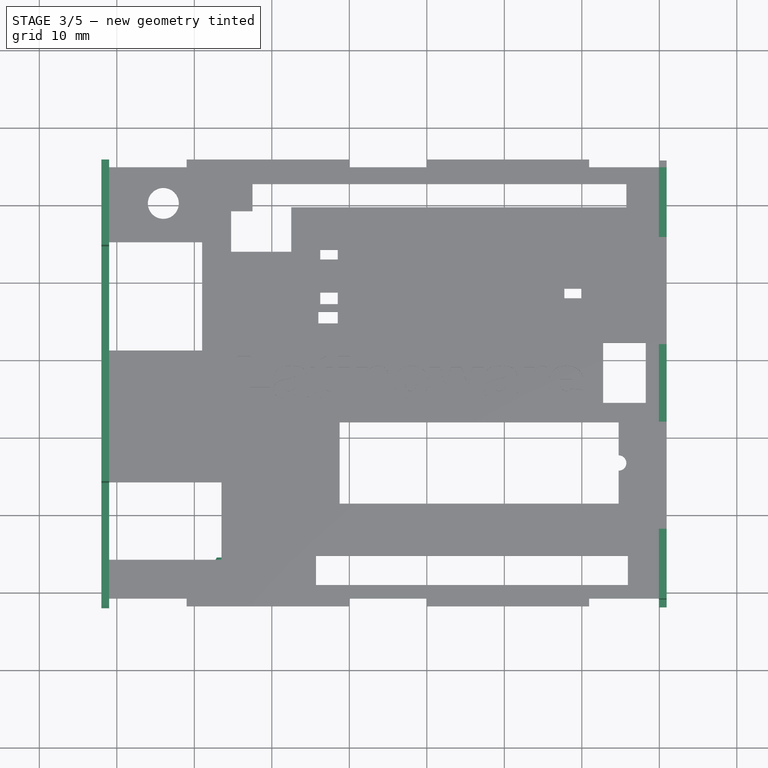
[diagram: stage 3 of 5 — top view after this stage's code; geometry added in this stage tinted green]
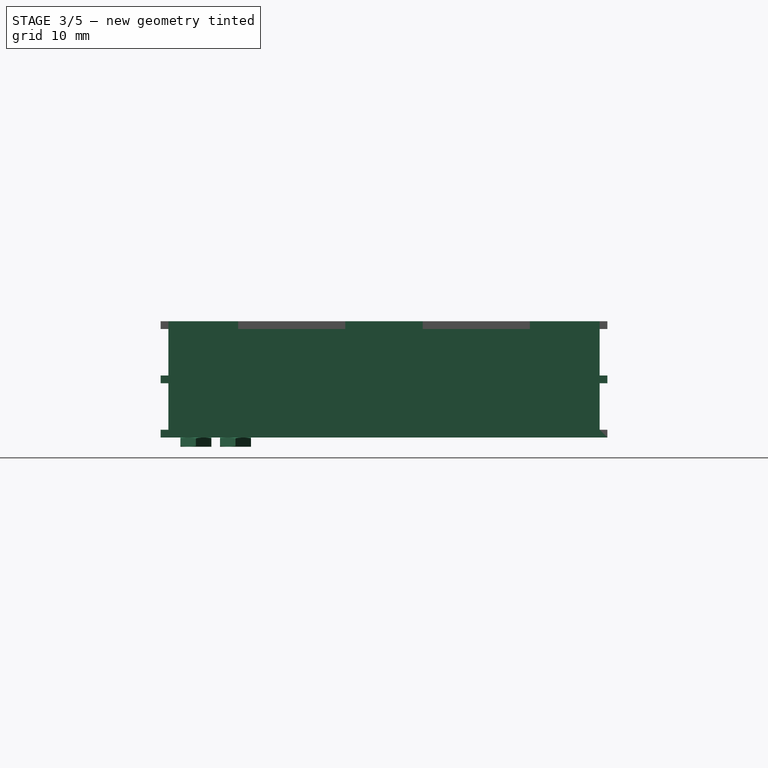
[diagram: stage 3 of 5 — right view after this stage's code; geometry added in this stage tinted green]
FEATURE [Part::FeaturePython] Nut002  label="M2-Nut098"  # Fasteners workbench fastener (typed FeaturePython)
  Placement = pos=(66.4139,7.6684,0) rot=(-1,0,0;3.14159rad)
  baseObject = -> Extrude [Edge92]
  diameter = 2
  invert = true
  matchOuter = false
  offset = 0
  thread = false
  type = 9
FEATURE [Part::FeaturePython] Nut003  label="M2-Nut099"  # Fasteners workbench fastener (typed FeaturePython)
  Placement = pos=(14.0525,2.55698,0) rot=(-1,0,0;3.14159rad)
  baseObject = -> Extrude [Edge95]
  diameter = 2
  invert = true
  matchOuter = false
  offset = 0
  thread = false
  type = 9
FEATURE [Sketcher::SketchObject] Sketch002
  ExternalGeometry = -> [Extrude001,Extrude]
  MapMode = 5
  Placement = pos=(69.95,0,0) rot=(0.57735,0.57735,0.57735;2.0944rad)
  Support = -> [Extrude]
  expr: Constraints[153] = Spreadsheet.width
  expr: Constraints[156] = Spreadsheet.connectorA - Spreadsheet.width
  expr: Constraints[158] = Spreadsheet.height
  expr: Constraints[157] = Spreadsheet.connectorB
  sketch-geometry (62):
    g0: LineSegment StartX=-1 StartY=15 StartZ=0 EndX=-1 EndY=8 EndZ=0
    g1: LineSegment StartX=-1 StartY=8 StartZ=0 EndX=-2 EndY=8 EndZ=0
    g2: LineSegment StartX=-2 StartY=8 StartZ=0 EndX=-2 EndY=7 EndZ=0
    g3: LineSegment StartX=-2 StartY=7 StartZ=0 EndX=-1 EndY=7 EndZ=0
    g4: LineSegment StartX=-1 StartY=7 StartZ=0 EndX=-1 EndY=0 EndZ=0
    g5: LineSegment StartX=-1 StartY=0 StartZ=0 EndX=8 EndY=0 EndZ=0
    g6: LineSegment StartX=8 StartY=0 StartZ=0 EndX=8 EndY=1 EndZ=0
    g7: LineSegment StartX=8 StartY=1 StartZ=0 EndX=21.825 EndY=1 EndZ=0
    g8: LineSegment StartX=21.825 StartY=1 StartZ=0 EndX=21.825 EndY=0 EndZ=0
    g9: LineSegment StartX=21.825 StartY=0 StartZ=0 EndX=31.825 EndY=0 EndZ=0
    g10: LineSegment StartX=31.825 StartY=0 StartZ=0 EndX=31.825 EndY=1 EndZ=0
    g11: LineSegment StartX=31.825 StartY=1 StartZ=0 EndX=45.65 EndY=1 EndZ=0
    g12: LineSegment StartX=45.65 StartY=1 StartZ=0 EndX=45.65 EndY=0 EndZ=0
    g13: LineSegment StartX=45.65 StartY=0 StartZ=0 EndX=54.65 EndY=0 EndZ=0
    g14: LineSegment StartX=54.65 StartY=0 StartZ=0 EndX=54.65 EndY=7 EndZ=0
    g15: LineSegment StartX=54.65 StartY=8 StartZ=0 EndX=55.65 EndY=8 EndZ=0
    g16: LineSegment StartX=55.65 StartY=8 StartZ=0 EndX=55.65 EndY=7 EndZ=0
    g17: LineSegment StartX=55.65 StartY=7 StartZ=0 EndX=54.65 EndY=7 EndZ=0
    g18: LineSegment StartX=54.65 StartY=8 StartZ=0 EndX=54.65 EndY=15 EndZ=0
    g19: LineSegment [constr] StartX=54.65 StartY=8 StartZ=0 EndX=45.65 EndY=8 EndZ=0
    g20: LineSegment [constr] StartX=45.65 StartY=8 StartZ=0 EndX=45.65 EndY=7 EndZ=0
    g21: LineSegment [constr] StartX=45.65 StartY=7 StartZ=0 EndX=54.65 EndY=7 EndZ=0
    g22: LineSegment [constr] StartX=54.65 StartY=7 StartZ=0 EndX=54.65 EndY=8 EndZ=0
    g23: LineSegment [constr] StartX=45.65 StartY=7 StartZ=0 EndX=45.65 EndY=1 EndZ=0
    g24: LineSegment [constr] StartX=45.65 StartY=1 StartZ=0 EndX=54.65 EndY=1 EndZ=0
    g25: LineSegment StartX=45.65 StartY=15 StartZ=0 EndX=54.65 EndY=15 EndZ=0
    g26: LineSegment [constr] StartX=45.65 StartY=14 StartZ=0 EndX=45.65 EndY=8 EndZ=0
    g27: LineSegment StartX=21.825 StartY=15 StartZ=0 EndX=21.825 EndY=14 EndZ=0
    g28: LineSegment [constr] StartX=21.825 StartY=14 StartZ=0 EndX=31.825 EndY=14 EndZ=0
    g29: LineSegment StartX=31.825 StartY=14 StartZ=0 EndX=31.825 EndY=15 EndZ=0
    g30: LineSegment [constr] StartX=45.65 StartY=8 StartZ=0 EndX=31.825 EndY=8 EndZ=0
    g31: LineSegment [constr] StartX=31.825 StartY=8 StartZ=0 EndX=31.825 EndY=14 EndZ=0
    g32: LineSegment StartX=45.65 StartY=15 StartZ=0 EndX=45.65 EndY=14 EndZ=0
    g33: LineSegment StartX=45.65 StartY=14 StartZ=0 EndX=31.825 EndY=14 EndZ=0
    g34: LineSegment StartX=31.825 StartY=15 StartZ=0 EndX=21.825 EndY=15 EndZ=0
    g35: LineSegment [constr] StartX=31.825 StartY=15 StartZ=0 EndX=45.65 EndY=15 EndZ=0
    g36: LineSegment StartX=21.825 StartY=14 StartZ=0 EndX=8 EndY=14 EndZ=0
    g37: LineSegment StartX=8 StartY=14 StartZ=0 EndX=8 EndY=15 EndZ=0
    g38: LineSegment StartX=8 StartY=15 StartZ=0 EndX=-1 EndY=15 EndZ=0
    g39: LineSegment [constr] StartX=8 StartY=15 StartZ=0 EndX=21.825 EndY=15 EndZ=0
    g40: LineSegment [constr] StartX=31.825 StartY=8 StartZ=0 EndX=21.825 EndY=8 EndZ=0
    g41: LineSegment [constr] StartX=21.825 StartY=8 StartZ=0 EndX=21.825 EndY=7 EndZ=0
    g42: LineSegment [constr] StartX=21.825 StartY=7 StartZ=0 EndX=31.825 EndY=7 EndZ=0
    g43: LineSegment [constr] StartX=31.825 StartY=7 StartZ=0 EndX=31.825 EndY=8 EndZ=0
    g44: LineSegment [constr] StartX=-1 StartY=8 StartZ=0 EndX=8 EndY=8 EndZ=0
    g45: LineSegment [constr] StartX=8 StartY=8 StartZ=0 EndX=8 EndY=7 EndZ=0
    g46: LineSegment [constr] StartX=8 StartY=7 StartZ=0 EndX=-1 EndY=7 EndZ=0
    g47: LineSegment [constr] StartX=-1 StartY=7 StartZ=0 EndX=-1 EndY=8 EndZ=0
    g48: LineSegment [constr] StartX=21.825 StartY=14 StartZ=0 EndX=21.825 EndY=8 EndZ=0
    g49: LineSegment [constr] StartX=21.825 StartY=8 StartZ=0 EndX=8 EndY=8 EndZ=0
    g50: LineSegment [constr] StartX=8 StartY=8 StartZ=0 EndX=8 EndY=14 EndZ=0
    g51: LineSegment [constr] StartX=8 StartY=14 StartZ=0 EndX=-1 EndY=14 EndZ=0
    g52: LineSegment [constr] StartX=21.825 StartY=7 StartZ=0 EndX=8 EndY=7 EndZ=0
    g53: LineSegment [constr] StartX=45.65 StartY=7 StartZ=0 EndX=31.825 EndY=7 EndZ=0
    g54: LineSegment [constr] StartX=31.825 StartY=7 StartZ=0 EndX=31.825 EndY=1 EndZ=0
    g55: LineSegment [constr] StartX=21.825 StartY=7 StartZ=0 EndX=21.825 EndY=1 EndZ=0
    g56: LineSegment [constr] StartX=31.825 StartY=1 StartZ=0 EndX=21.825 EndY=1 EndZ=0
    g57: LineSegment [constr] StartX=45.65 StartY=14 StartZ=0 EndX=54.65 EndY=14 EndZ=0
    g58: LineSegment [constr] StartX=45.65 StartY=0 StartZ=0 EndX=31.825 EndY=0 EndZ=0
    g59: LineSegment [constr] StartX=21.825 StartY=0 StartZ=0 EndX=8 EndY=0 EndZ=0
    g60: LineSegment [constr] StartX=8 StartY=7 StartZ=0 EndX=8 EndY=1 EndZ=0
    g61: LineSegment [constr] StartX=8 StartY=1 StartZ=0 EndX=-1 EndY=1 EndZ=0
  constraints (161):
    c: Vertical(g0)
    c: Coincident(g0,g1)
    c: Horizontal(g1)
    c: Coincident(g1,g2)
    c: Vertical(g2)
    c: Coincident(g2,g3)
    c: Horizontal(g3)
    c: Coincident(g3,g4)
    c: Coincident(g4,g5)
    c: Horizontal(g5)
    c: Coincident(g5,g6)
    c: Vertical(g6)
    c: Coincident(g6,g7)
    c: Horizontal(g7)
    c: Coincident(g7,g8)
    c: Vertical(g8)
    c: Coincident(g8,g9)
    c: Horizontal(g9)
    c: Coincident(g9,g10)
    c: Vertical(g10)
    c: Coincident(g10,g11)
    c: Horizontal(g11)
    c: Coincident(g11,g12)
    c: Vertical(g12)
    c: Coincident(g12,g13)
    c: Horizontal(g13)
    c: Coincident(g13,g14)
    c: Vertical(g14)
    c: Coincident(g15,g16)
    c: Coincident(g16,g17)
    c: Horizontal(g15)
    c: Horizontal(g17)
    c: Vertical(g16)
    c: Coincident(g14,g17)
    c: Coincident(g18,g15)
    c: Tangent(g14,g18)
    c: Coincident(g19,g20)
    c: Coincident(g20,g21)
    c: Coincident(g21,g22)
    c: Coincident(g22,g19)
    c: Horizontal(g19)
    c: Horizontal(g21)
    c: Vertical(g20)
    c: Coincident(g15,g19)
    c: Coincident(g14,g21)
    c: Vertical(g23)
    c: Coincident(g23,g24)
    c: PointOnObject(g24,g14)
    c: Horizontal(g24)
    c: Coincident(g11,g23)
    c: Coincident(g20,g23)
    c: Horizontal(g25)
    c: Vertical(g26)
    c: Coincident(g19,g26)
    c: Coincident(g18,g25)
    c: Coincident(g27,g28)
    c: Coincident(g28,g29)
    c: Horizontal(g28)
    c: Vertical(g27)
    c: Vertical(g29)
    c: Horizontal(g30)
    c: Coincident(g30,g31)
    c: Vertical(g31)
    c: Coincident(g25,g32)
    c: Coincident(g32,g26)
    c: Vertical(g32)
    c: Coincident(g32,g33)
    c: Horizontal(g33)
    c: Coincident(g34,g27)
    c: Horizontal(g34)
    c: Coincident(g35,g34)
    c: Horizontal(g35)
    c: Coincident(g25,g35)
    c: Coincident(g29,g34)
    c: Horizontal(g36)
    c: Coincident(g36,g37)
    c: Coincident(g37,g38)
    c: Coincident(g38,g0)
    c: Horizontal(g38)
    c: Coincident(g39,g34)
    c: Horizontal(g39)
    c: Coincident(g37,g39)
    c: Coincident(g27,g36)
    c: Coincident(g28,g31)
    c: Coincident(g28,g33)
    c: Coincident(g40,g41)
    c: Coincident(g41,g42)
    c: Coincident(g42,g43)
    c: Coincident(g43,g40)
    c: Horizontal(g40)
    c: Horizontal(g42)
    c: Vertical(g41)
    c: Vertical(g43)
    c: Coincident(g44,g45)
    c: Coincident(g45,g46)
    c: Coincident(g46,g47)
    c: Coincident(g47,g44)
    c: Horizontal(g44)
    c: Horizontal(g46)
    c: Vertical(g45)
    c: Vertical(g47)
    c: Vertical(g48)
    c: Coincident(g48,g49)
    c: Horizontal(g49)
    c: Coincident(g49,g50)
    c: Vertical(g50)
    c: Coincident(g50,g51)
    c: Horizontal(g51)
    c: Coincident(g36,g50)
    c: Coincident(g44,g49)
    c: Coincident(g0,g44)
    c: Coincident(g3,g46)
    c: Coincident(g30,g40)
    c: Coincident(g40,g48)
    c: Coincident(g27,g48)
    c: Horizontal(g52)
    c: Vertical(g37)
    c: Coincident(g45,g52)
    c: Coincident(g19,g30)
    c: Horizontal(g53)
    c: Coincident(g42,g53)
    c: Coincident(g20,g53)
    c: Coincident(g54,g10)
    c: Vertical(g54)
    c: Horizontal(g56)
    c: Coincident(g7,g55)
    c: Coincident(g7,g56)
    c: Coincident(g41,g52)
    c: Coincident(g41,g55)
    c: Vertical(g55)
    c: Coincident(g10,g56)
    c: Coincident(g42,g54)
    c: PointOnObject(g57,g18)
    c: Horizontal(g57)
    c: Horizontal(g58)
    c: Coincident(g5,g59)
    c: Coincident(g8,g59)
    c: Coincident(g9,g58)
    c: Coincident(g12,g58)
    c: Coincident(g26,g57)
    c: Vertical(g4)
    c: Coincident(g60,g45)
    c: Coincident(g60,g6)
    c: Vertical(g60)
    c: Coincident(g61,g6)
    c: PointOnObject(g61,g4)
    c: Horizontal(g61)
    c: PointOnObject(g51,g0)
    c: Equal(g2,g1)
    c: Equal(g1,g15)
    c: Equal(g0,g4)
    c: Equal(g38,g25)
    c: Equal(g36,g33)
    c: DistanceY(g2,g2) = 1
    c: Equal(g37,g6)
    c: Equal(g6,g1)
    c: DistanceX(g38,g38) = 9
    c: DistanceX(g34,g34) = 10
    c: DistanceY(g4,g0) = 15
    c: Coincident(g4,g-4)
    c: Coincident(g-5,g13)
FEATURE [Part::Extrusion] Extrude002  label="Anterior"
  Base = -> Sketch002
  Dir = (1,0,0)
  DirMode = 2
  FaceMakerClass = Part::FaceMakerBullseye
  LengthFwd = 1
  LengthRev = 0
  Solid = true
  Symmetric = false
  expr: LengthFwd = Spreadsheet.width
FEATURE [App::DocumentObjectGroup] Group  label="Parafusos"
  Group = -> [Screw,Screw001,Screw002,Screw003]
FEATURE [App::DocumentObjectGroup] Group001  label="Porcas"
  Group = -> [Nut,Nut001,Nut002,Nut003]
FEATURE [Sketcher::SketchObject] Sketch003
  ExternalGeometry = -> [Extrude001,mirror]
  MapMode = 5
  Placement = pos=(-1,0,0) rot=(0.57735,-0.57735,-0.57735;2.0944rad)
  Support = -> [Extrude]
  expr: Constraints[137] = Spreadsheet.height
  expr: Constraints[153] = Spreadsheet.space + 1
  sketch-geometry (59):
    g0: LineSegment StartX=-55.65 StartY=2e-16 StartZ=0 EndX=2 EndY=2e-16 EndZ=0
    g1: LineSegment StartX=2 StartY=2e-16 StartZ=0 EndX=2 EndY=1 EndZ=0
    g2: LineSegment StartX=2 StartY=1 StartZ=0 EndX=1 EndY=1 EndZ=0
    g3: LineSegment StartX=1 StartY=1 StartZ=0 EndX=1 EndY=7 EndZ=0
    g4: LineSegment StartX=1 StartY=7 StartZ=0 EndX=2 EndY=7 EndZ=0
    g5: LineSegment StartX=2 StartY=7 StartZ=0 EndX=2 EndY=8 EndZ=0
    g6: LineSegment StartX=2 StartY=8 StartZ=0 EndX=1 EndY=8 EndZ=0
    g7: LineSegment StartX=1 StartY=8 StartZ=0 EndX=1 EndY=14 EndZ=0
    g8: LineSegment StartX=1 StartY=14 StartZ=0 EndX=2 EndY=14 EndZ=0
    g9: LineSegment StartX=2 StartY=14 StartZ=0 EndX=2 EndY=15 EndZ=0
    g10: LineSegment StartX=2 StartY=15 StartZ=0 EndX=-4.15 EndY=15 EndZ=0
    g11: LineSegment StartX=-4.15 StartY=15 StartZ=0 EndX=-4.15 EndY=3 EndZ=0
    g12: LineSegment StartX=-4.15 StartY=3 StartZ=0 EndX=-14.15 EndY=3 EndZ=0
    g13: LineSegment StartX=-14.15 StartY=3 StartZ=0 EndX=-14.15 EndY=15 EndZ=0
    g14: LineSegment StartX=-14.15 StartY=15 StartZ=0 EndX=-31.15 EndY=15 EndZ=0
    g15: LineSegment StartX=-31.15 StartY=15 StartZ=0 EndX=-31.15 EndY=3 EndZ=0
    g16: LineSegment StartX=-31.15 StartY=3 StartZ=0 EndX=-44.65 EndY=3 EndZ=0
    g17: LineSegment StartX=-44.65 StartY=3 StartZ=0 EndX=-44.65 EndY=15 EndZ=0
    g18: LineSegment StartX=-44.65 StartY=15 StartZ=0 EndX=-55.65 EndY=15 EndZ=0
    g19: LineSegment StartX=-55.65 StartY=15 StartZ=0 EndX=-55.65 EndY=14 EndZ=0
    g20: LineSegment StartX=-55.65 StartY=14 StartZ=0 EndX=-54.65 EndY=14 EndZ=0
    g21: LineSegment StartX=-54.65 StartY=14 StartZ=0 EndX=-54.65 EndY=8 EndZ=0
    g22: LineSegment StartX=-54.65 StartY=8 StartZ=0 EndX=-55.65 EndY=8 EndZ=0
    g23: LineSegment StartX=-55.65 StartY=8 StartZ=0 EndX=-55.65 EndY=7 EndZ=0
    g24: LineSegment StartX=-55.65 StartY=7 StartZ=0 EndX=-54.65 EndY=7 EndZ=0
    g25: LineSegment StartX=-54.65 StartY=7 StartZ=0 EndX=-54.65 EndY=1 EndZ=0
    g26: LineSegment StartX=-54.65 StartY=1 StartZ=0 EndX=-55.65 EndY=1 EndZ=0
    g27: LineSegment StartX=-55.65 StartY=1 StartZ=0 EndX=-55.65 EndY=2e-16 EndZ=0
    g28: LineSegment [constr] StartX=1 StartY=14 StartZ=0 EndX=-4.15 EndY=14 EndZ=0
    g29: LineSegment [constr] StartX=-4.15 StartY=14 StartZ=0 EndX=-14.15 EndY=14 EndZ=0
    g30: LineSegment [constr] StartX=-14.15 StartY=14 StartZ=0 EndX=-31.15 EndY=14 EndZ=0
    g31: LineSegment [constr] StartX=-31.15 StartY=14 StartZ=0 EndX=-44.65 EndY=14 EndZ=0
    g32: LineSegment [constr] StartX=-44.65 StartY=14 StartZ=0 EndX=-54.65 EndY=14 EndZ=0
    g33: LineSegment [constr] StartX=-54.65 StartY=14 StartZ=0 EndX=-54.65 EndY=15 EndZ=0
    g34: LineSegment [constr] StartX=-54.65 StartY=8 StartZ=0 EndX=-54.65 EndY=7 EndZ=0
    g35: LineSegment [constr] StartX=-54.65 StartY=1 StartZ=0 EndX=-54.65 EndY=0 EndZ=0
    g36: LineSegment [constr] StartX=-54.65 StartY=1 StartZ=0 EndX=1 EndY=1 EndZ=0
    g37: LineSegment [constr] StartX=1 StartY=8 StartZ=0 EndX=-4.15 EndY=8 EndZ=0
    g38: LineSegment [constr] StartX=-4.15 StartY=8 StartZ=0 EndX=-14.15 EndY=8 EndZ=0
    g39: LineSegment [constr] StartX=-14.15 StartY=8 StartZ=0 EndX=-31.15 EndY=8 EndZ=0
    g40: LineSegment [constr] StartX=-31.15 StartY=8 StartZ=0 EndX=-44.65 EndY=8 EndZ=0
    g41: LineSegment [constr] StartX=-44.65 StartY=8 StartZ=0 EndX=-54.65 EndY=8 EndZ=0
    g42: LineSegment [constr] StartX=-54.65 StartY=7 StartZ=0 EndX=-44.65 EndY=7 EndZ=0
    g43: LineSegment [constr] StartX=-44.65 StartY=7 StartZ=0 EndX=-31.15 EndY=7 EndZ=0
    g44: LineSegment [constr] StartX=-31.15 StartY=7 StartZ=0 EndX=-14.15 EndY=7 EndZ=0
    g45: LineSegment [constr] StartX=-14.15 StartY=7 StartZ=0 EndX=-4.15 EndY=7 EndZ=0
    g46: LineSegment [constr] StartX=-4.15 StartY=7 StartZ=0 EndX=1 EndY=7 EndZ=0
    g47: LineSegment [constr] StartX=1 StartY=14 StartZ=0 EndX=0.85 EndY=15 EndZ=0
    g48: LineSegment [constr] StartX=1 StartY=7 StartZ=0 EndX=1 EndY=8 EndZ=0
    g49: LineSegment [constr] StartX=1 StartY=0 StartZ=0 EndX=1 EndY=1 EndZ=0
    g50: LineSegment [constr] StartX=2 StartY=14 StartZ=0 EndX=2 EndY=8 EndZ=0
    g51: LineSegment [constr] StartX=2 StartY=7 StartZ=0 EndX=2 EndY=1 EndZ=0
    g52: LineSegment [constr] StartX=-55.65 StartY=1 StartZ=0 EndX=-55.65 EndY=7 EndZ=0
    g53: LineSegment [constr] StartX=-55.65 StartY=8 StartZ=0 EndX=-55.65 EndY=14 EndZ=0
    g54: LineSegment [constr] StartX=-31.15 StartY=15 StartZ=0 EndX=-44.65 EndY=15 EndZ=0
    g55: LineSegment [constr] StartX=-14.15 StartY=15 StartZ=0 EndX=-4.15 EndY=15 EndZ=0
    g56: LineSegment [constr] StartX=-31.15 StartY=3 StartZ=0 EndX=-14.15 EndY=3 EndZ=0
    g57: LineSegment [constr] StartX=-44.65 StartY=3 StartZ=0 EndX=-54.65 EndY=3 EndZ=0
    g58: LineSegment [constr] StartX=-54.65 StartY=3 StartZ=0 EndX=-55.65 EndY=3 EndZ=0
  constraints (160):
    c: Coincident(g-4,g0)
    c: Coincident(g0,g-3)
    c: Coincident(g0,g1)
    c: Vertical(g1)
    c: Coincident(g1,g2)
    c: Horizontal(g2)
    c: Coincident(g2,g3)
    c: Vertical(g3)
    c: Coincident(g3,g4)
    c: Horizontal(g4)
    c: Coincident(g4,g5)
    c: Coincident(g5,g6)
    c: Horizontal(g6)
    c: Coincident(g6,g7)
    c: Vertical(g7)
    c: Coincident(g7,g8)
    c: Horizontal(g8)
    c: Coincident(g8,g9)
    c: Vertical(g9)
    c: Coincident(g9,g10)
    c: Horizontal(g10)
    c: Coincident(g10,g11)
    c: Vertical(g11)
    c: Coincident(g11,g12)
    c: Horizontal(g12)
    c: Coincident(g12,g13)
    c: Vertical(g13)
    c: Coincident(g13,g14)
    c: Horizontal(g14)
    c: Coincident(g14,g15)
    c: Vertical(g15)
    c: Coincident(g15,g16)
    c: Horizontal(g16)
    c: Coincident(g16,g17)
    c: Vertical(g17)
    c: Coincident(g17,g18)
    c: Horizontal(g18)
    c: Coincident(g18,g19)
    c: Vertical(g19)
    c: Coincident(g19,g20)
    c: Horizontal(g20)
    c: Coincident(g20,g21)
    c: Vertical(g21)
    c: Coincident(g21,g22)
    c: Horizontal(g22)
    c: Coincident(g22,g23)
    c: Vertical(g23)
    c: Coincident(g23,g24)
    c: Horizontal(g24)
    c: Coincident(g24,g25)
    c: Vertical(g25)
    c: Coincident(g25,g26)
    c: Horizontal(g26)
    c: Coincident(g26,g27)
    c: Coincident(g27,g0)
    c: Vertical(g27)
    c: Coincident(g28,g7)
    c: PointOnObject(g28,g11)
    c: Horizontal(g28)
    c: Coincident(g28,g29)
    c: PointOnObject(g29,g13)
    c: Horizontal(g29)
    c: Coincident(g29,g30)
    c: PointOnObject(g30,g15)
    c: Horizontal(g30)
    c: Coincident(g30,g31)
    c: PointOnObject(g31,g17)
    c: Horizontal(g31)
    c: Coincident(g31,g32)
    c: Coincident(g32,g20)
    c: Horizontal(g32)
    c: Coincident(g32,g33)
    c: PointOnObject(g33,g18)
    c: Vertical(g33)
    c: Coincident(g21,g34)
    c: Coincident(g34,g24)
    c: Vertical(g34)
    c: Coincident(g35,g25)
    c: Coincident(g35,g-4)
    c: Vertical(g35)
    c: Coincident(g36,g25)
    c: Coincident(g36,g2)
    c: Horizontal(g36)
    c: Coincident(g6,g37)
    c: PointOnObject(g37,g11)
    c: Horizontal(g37)
    c: Coincident(g37,g38)
    c: PointOnObject(g38,g13)
    c: Coincident(g38,g39)
    c: PointOnObject(g39,g15)
    c: Horizontal(g39)
    c: Coincident(g39,g40)
    c: PointOnObject(g40,g17)
    c: Horizontal(g40)
    c: Coincident(g40,g41)
    c: Coincident(g41,g21)
    c: Horizontal(g41)
    c: Horizontal(g38)
    c: Coincident(g24,g42)
    c: PointOnObject(g42,g17)
    c: Horizontal(g42)
    c: Coincident(g42,g43)
    c: PointOnObject(g43,g15)
    c: Horizontal(g43)
    c: Coincident(g43,g44)
    c: PointOnObject(g44,g13)
    c: Horizontal(g44)
    c: Coincident(g44,g45)
    c: PointOnObject(g45,g11)
    c: Horizontal(g45)
    c: Coincident(g45,g46)
    c: Horizontal(g46)
    c: Coincident(g3,g46)
    c: Coincident(g7,g47)
    c: PointOnObject(g47,g10)
    c: Coincident(g3,g48)
    c: Coincident(g48,g6)
    c: Vertical(g48)
    c: Vertical(g5)
    c: Coincident(g49,g-3)
    c: Coincident(g49,g2)
    c: Vertical(g49)
    c: Coincident(g50,g8)
    c: Coincident(g50,g5)
    c: Vertical(g50)
    c: Coincident(g51,g4)
    c: Coincident(g51,g1)
    c: Vertical(g51)
    c: Equal(g1,g2)
    c: Equal(g2,g5)
    c: Equal(g5,g9)
    c: Equal(g9,g20)
    c: Coincident(g52,g26)
    c: Coincident(g52,g23)
    c: Vertical(g52)
    c: Coincident(g53,g22)
    c: Coincident(g53,g19)
    c: DistanceY(g0,g18) = 15
    c: Coincident(g54,g14)
    c: Coincident(g54,g17)
    c: Horizontal(g54)
    c: Coincident(g55,g13)
    c: Coincident(g55,g10)
    c: Horizontal(g55)
    c: Coincident(g56,g15)
    c: Coincident(g56,g12)
    c: Horizontal(g56)
    c: Coincident(g57,g16)
    c: PointOnObject(g57,g25)
    c: Horizontal(g57)
    c: Coincident(g58,g57)
    c: PointOnObject(g58,g52)
    c: Horizontal(g58)
    c: DistanceY(g1,g11) = 2
    c: DistanceX(g10,g47) = 5
    c: DistanceX(g55,g55) = 10
    c: DistanceX(g14,g14) = 17
    c: DistanceX(g54,g54) = 13.5
    c: DistanceX(g33,g17) = 10
    c: Equal(g50,g51)
FEATURE [Part::Extrusion] Extrude003  label="Frontal"
  Base = -> Sketch003
  Dir = (-1,0,0)
  DirMode = 0
  FaceMakerClass = Part::FaceMakerBullseye
  LengthFwd = 1
  LengthRev = 0
  Solid = true
  Symmetric = false
  expr: LengthFwd = Spreadsheet.width
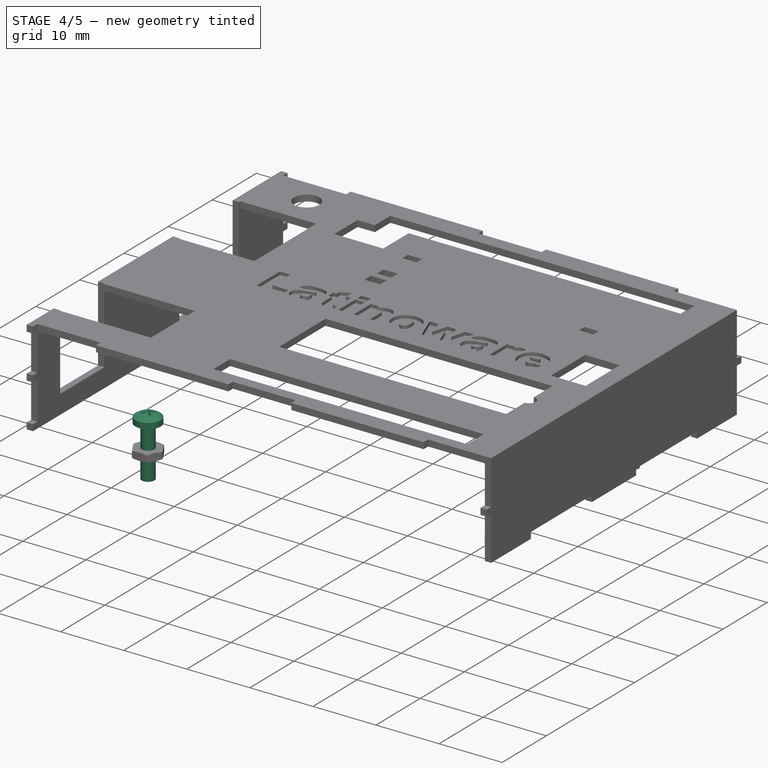
[diagram: stage 4 of 5 — iso view after this stage's code; geometry added in this stage tinted green]
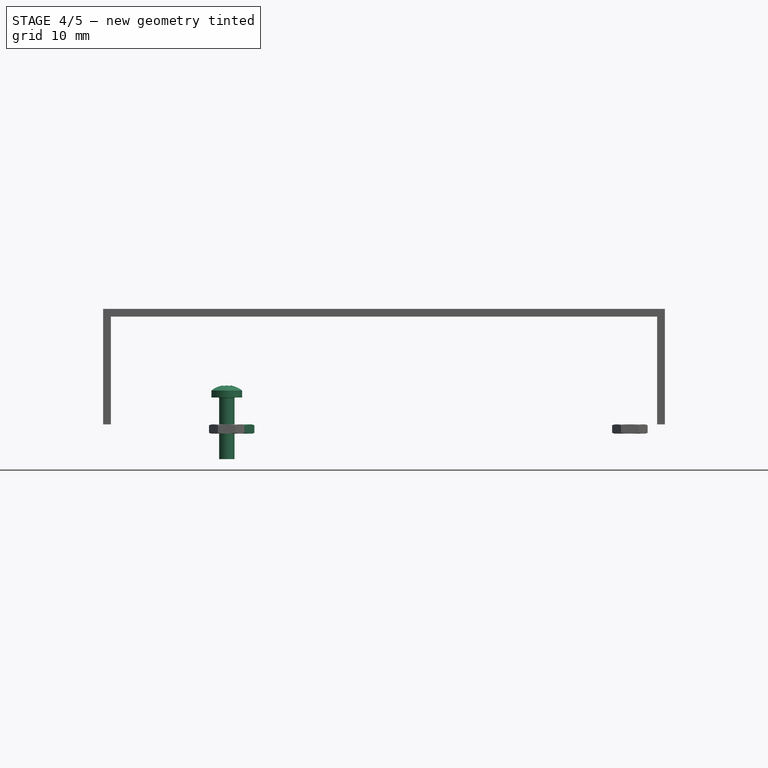
[diagram: stage 4 of 5 — front view after this stage's code; geometry added in this stage tinted green]
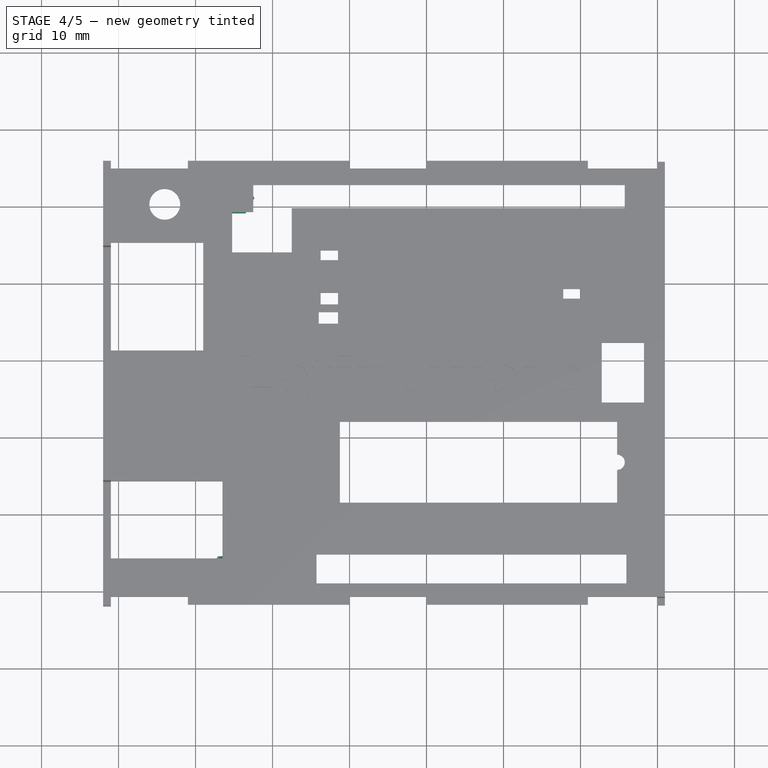
[diagram: stage 4 of 5 — top view after this stage's code; geometry added in this stage tinted green]
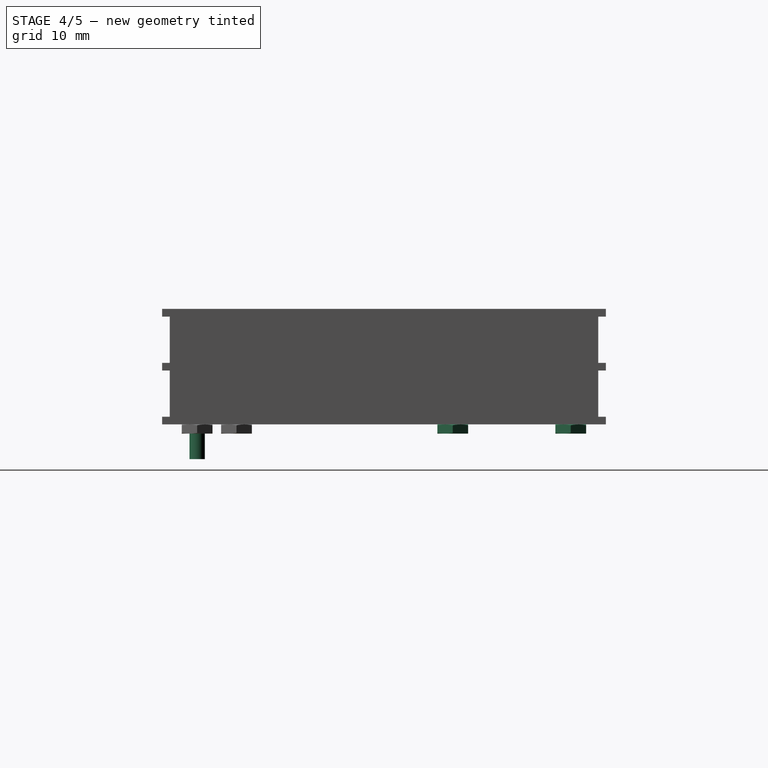
[diagram: stage 4 of 5 — right view after this stage's code; geometry added in this stage tinted green]
FEATURE [Part::FeaturePython] Nut  label="M2-Nut"  # Fasteners workbench fastener (typed FeaturePython)
  Placement = pos=(15.3341,51.0829,0) rot=(-1,0,0;3.14159rad)
  baseObject = -> Extrude [Edge86]
  diameter = 2
  invert = true
  matchOuter = false
  offset = 0
  thread = false
  type = 9
FEATURE [Part::FeaturePython] Nut001  label="M2-Nut097"  # Fasteners workbench fastener (typed FeaturePython)
  Placement = pos=(66.41,35.7498,0) rot=(-1,0,0;3.14159rad)
  baseObject = -> Extrude [Edge89]
  diameter = 2
  invert = true
  matchOuter = false
  offset = 0
  thread = false
  type = 9
FEATURE [Part::FeaturePython] Screw003  label="M2x8-Screw033"  # Fasteners workbench fastener (typed FeaturePython)
  Placement = pos=(14.0525,2.55698,3.5) rot=(0,0,1;0rad)
  baseObject = -> Extrude [Edge96]
  diameter = 2
  invert = false
  length = 4
  lengthCustom = 8
  matchOuter = false
  offset = 2.5
  thread = false
  type = 33
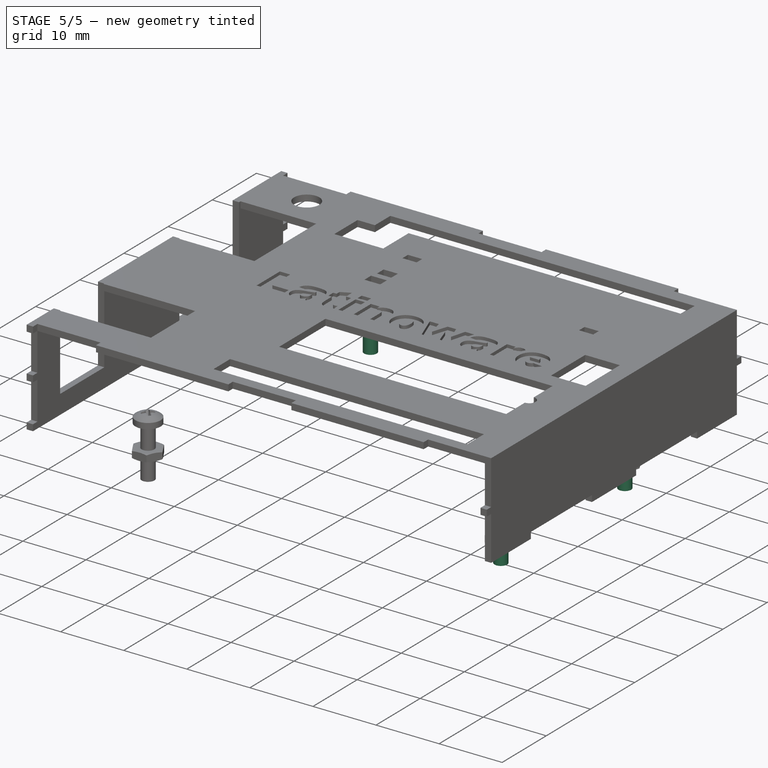
[diagram: stage 5 of 5 — iso view after this stage's code; geometry added in this stage tinted green]
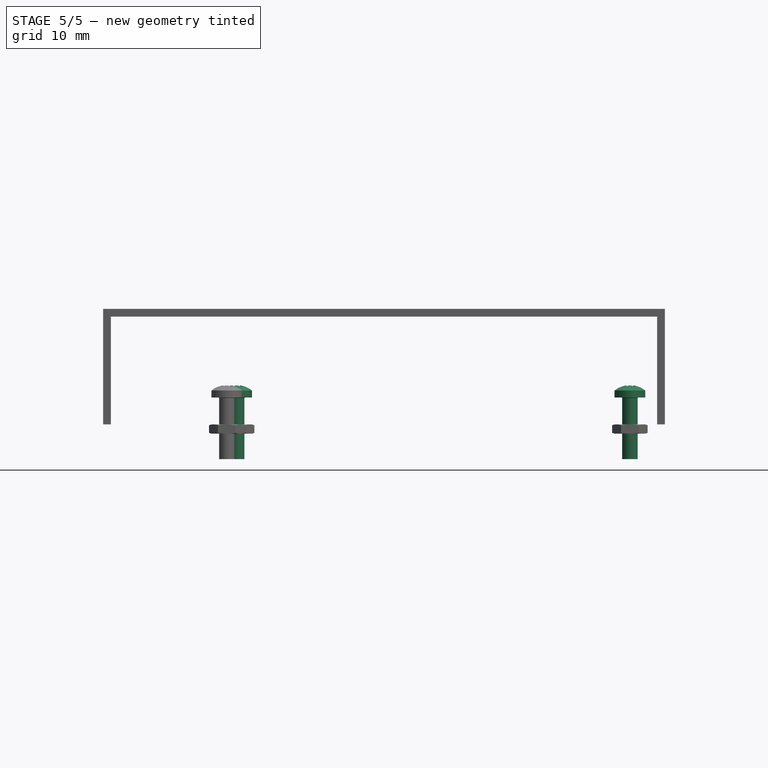
[diagram: stage 5 of 5 — front view after this stage's code; geometry added in this stage tinted green]
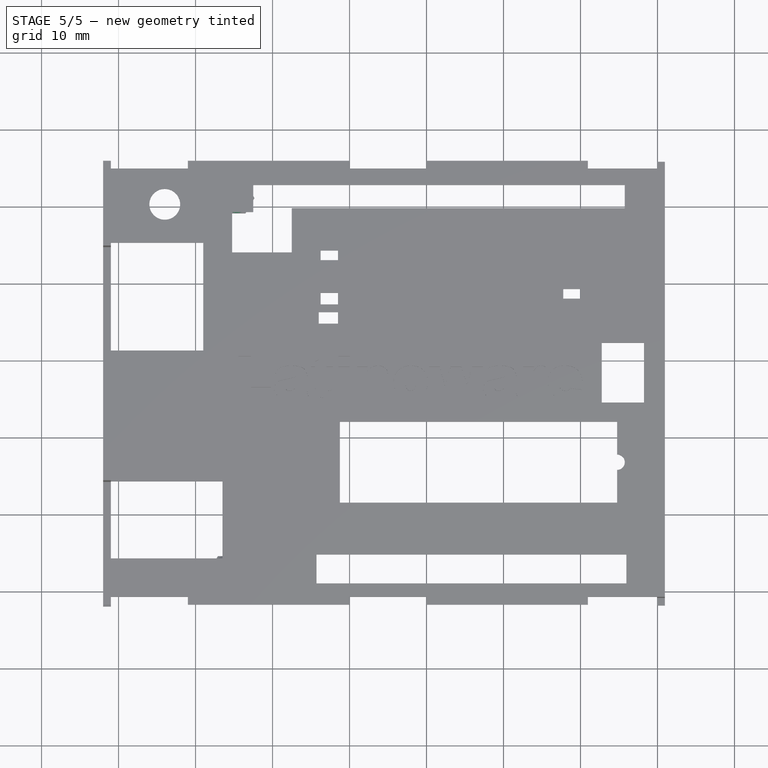
[diagram: stage 5 of 5 — top view after this stage's code; geometry added in this stage tinted green]
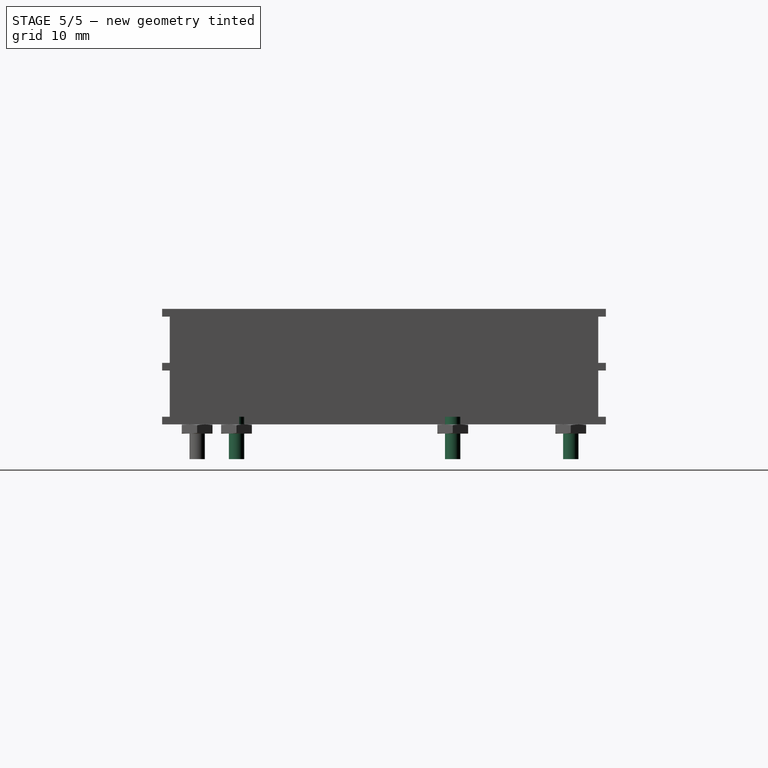
[diagram: stage 5 of 5 — right view after this stage's code; geometry added in this stage tinted green]
FEATURE [Part::FeaturePython] Screw  label="M2x8-Screw"  # Fasteners workbench fastener (typed FeaturePython)
  Placement = pos=(66.4139,7.6684,3.5) rot=(0,0,1;0rad)
  baseObject = -> Extrude [Edge93]
  diameter = 2
  invert = false
  length = 4
  lengthCustom = 8
  matchOuter = false
  offset = 2.5
  thread = false
  type = 33
FEATURE [Part::FeaturePython] Screw001  label="M2x8-Screw031"  # Fasteners workbench fastener (typed FeaturePython)
  Placement = pos=(66.41,35.7498,3.5) rot=(0,0,1;0rad)
  baseObject = -> Extrude [Edge90]
  diameter = 2
  invert = false
  length = 4
  lengthCustom = 8
  matchOuter = false
  offset = 2.5
  thread = false
  type = 33
FEATURE [Part::FeaturePython] Screw002  label="M2x8-Screw032"  # Fasteners workbench fastener (typed FeaturePython)
  Placement = pos=(15.3341,51.0829,3.5) rot=(0,0,1;0rad)
  baseObject = -> Extrude [Edge87]
  diameter = 2
  invert = false
  length = 4
  lengthCustom = 8
  matchOuter = false
  offset = 2.5
  thread = false
  type = 33
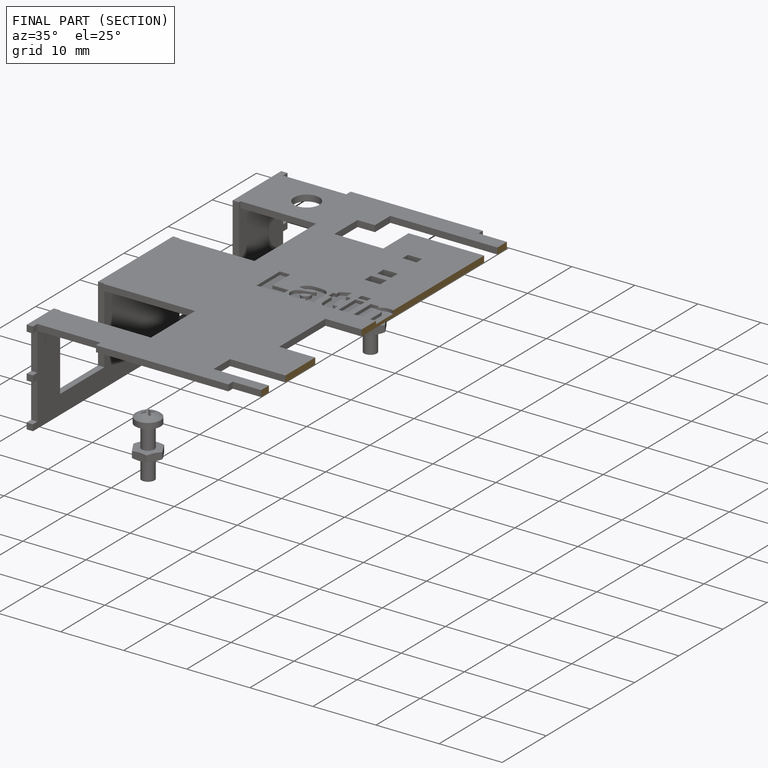
[diagram: finished part — half-section view (interior)]
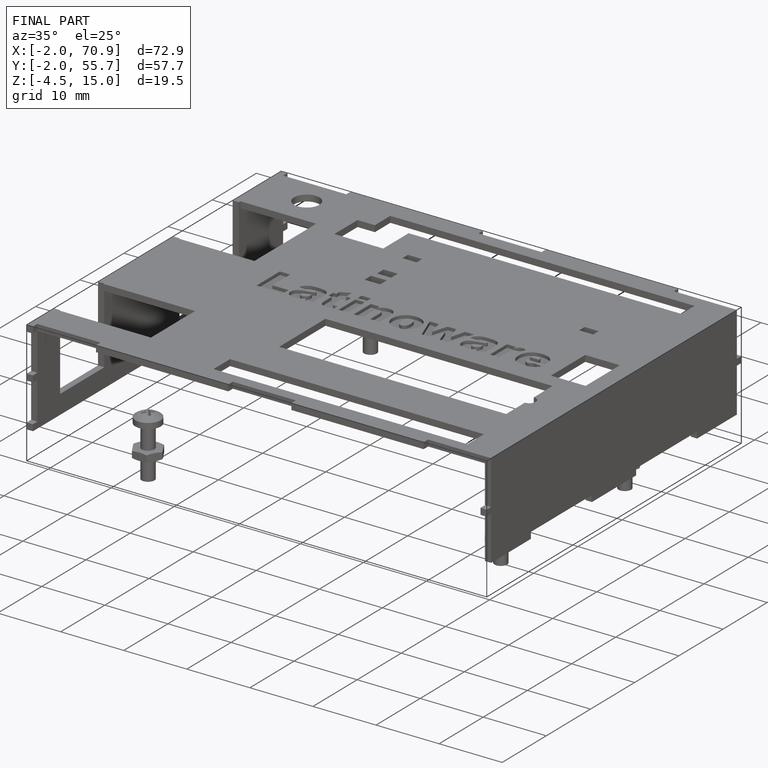
[diagram: finished part — iso view with bounding-box wireframe]
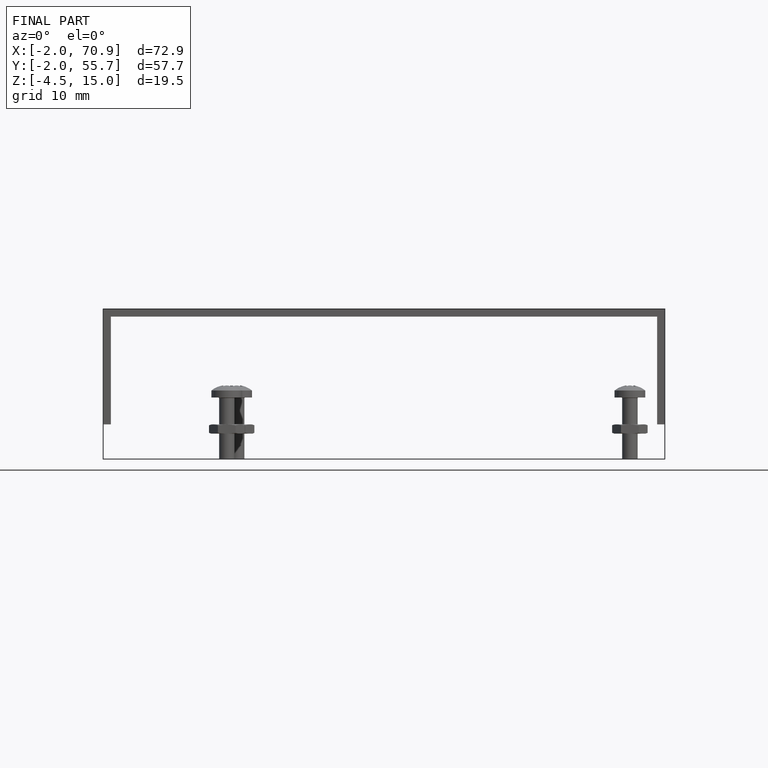
[diagram: finished part — front view with bounding-box wireframe]
